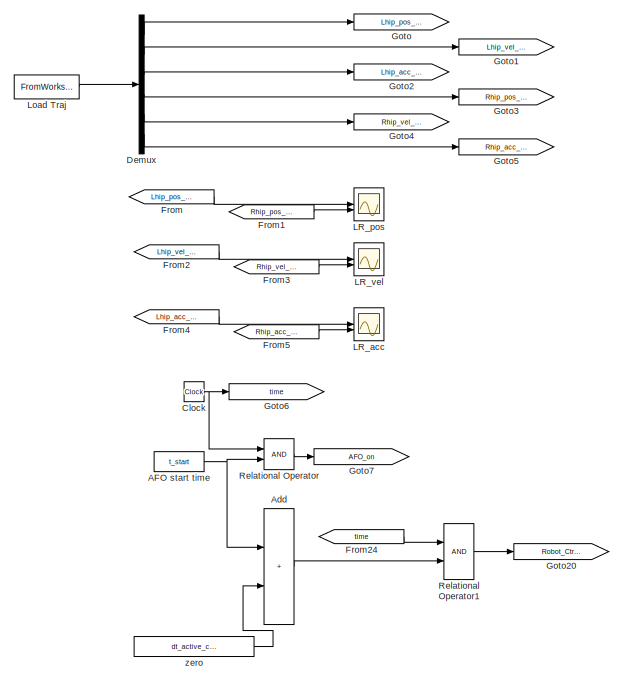
[diagram: root canvas - part 1/6, top left region]
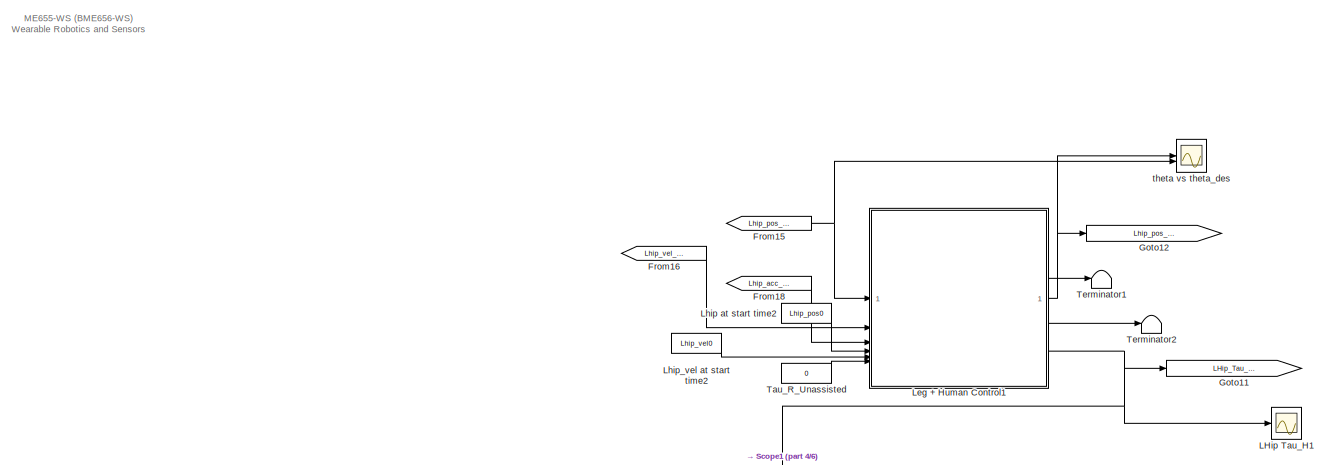
[diagram: root canvas - part 2/6, top center region]
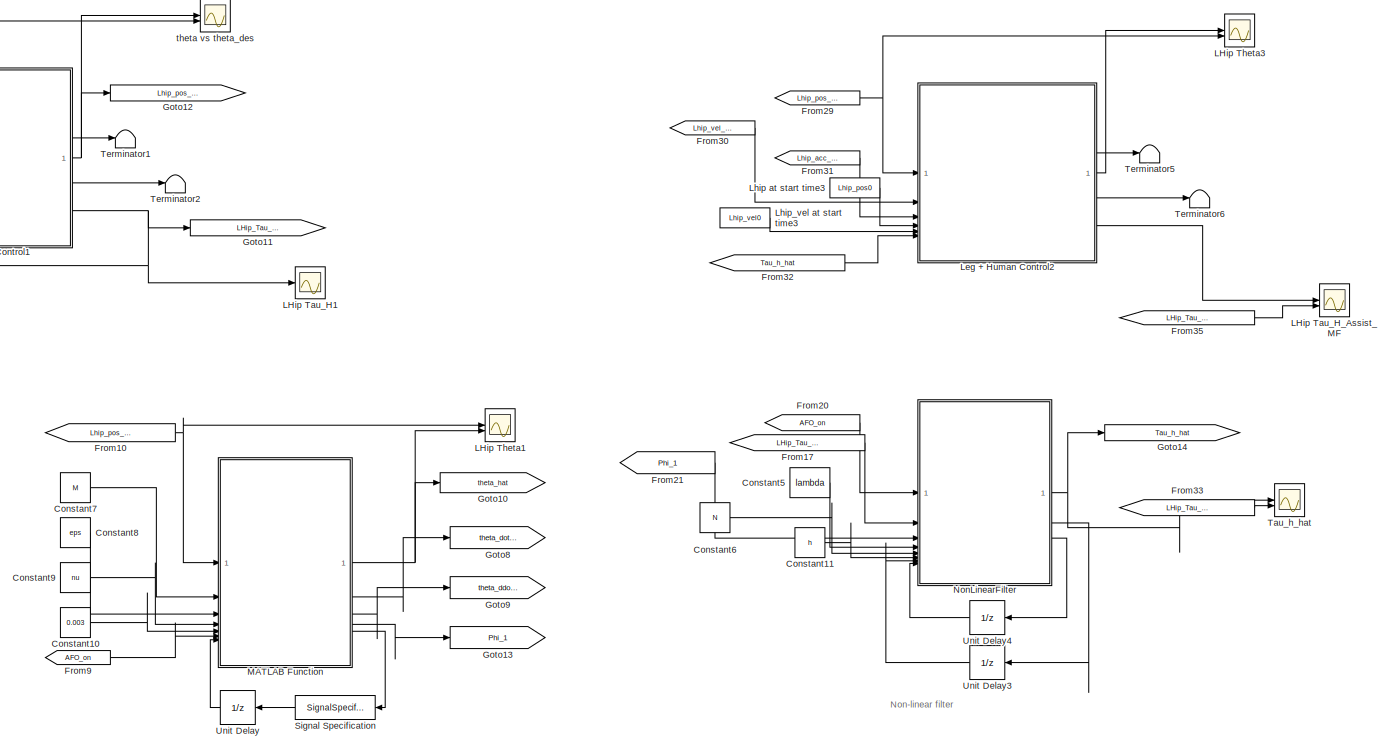
[diagram: root canvas - part 3/6, middle right region]
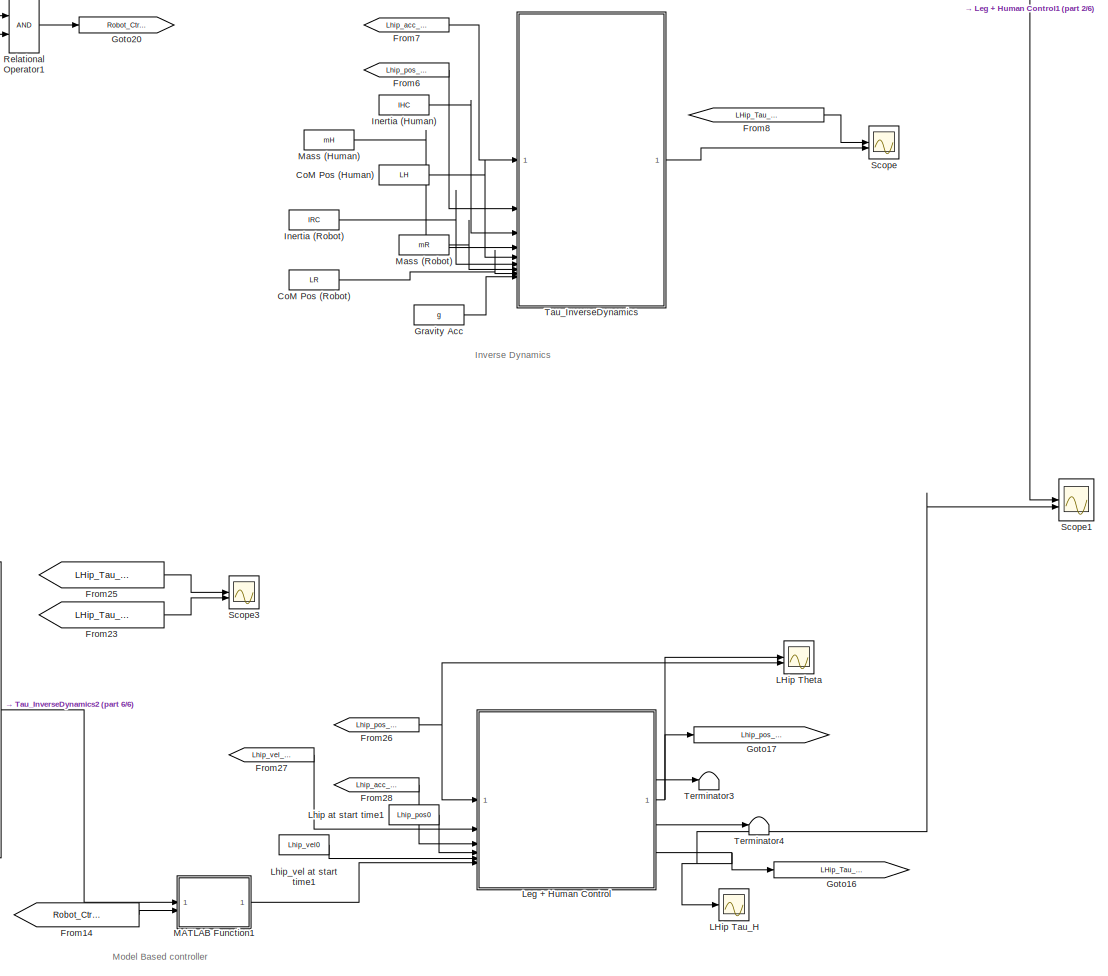
[diagram: root canvas - part 4/6, bottom center region]
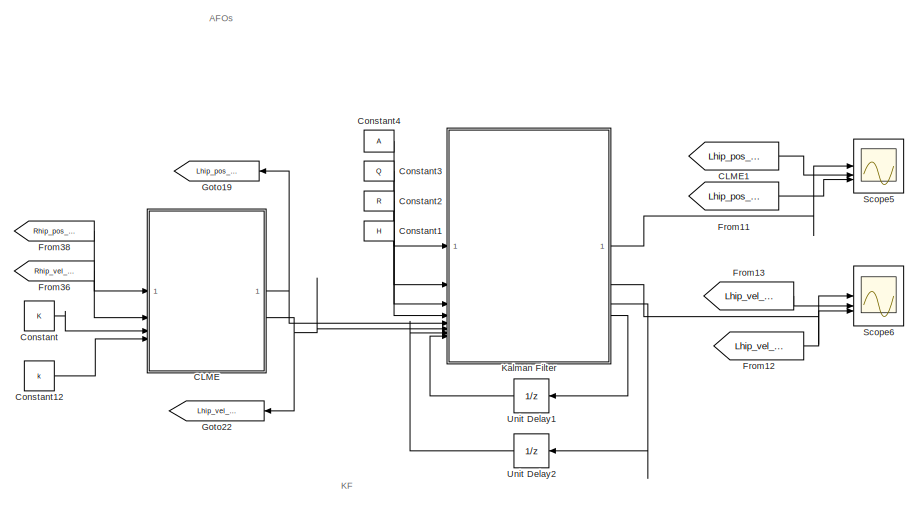
[diagram: root canvas - part 5/6, bottom right region]
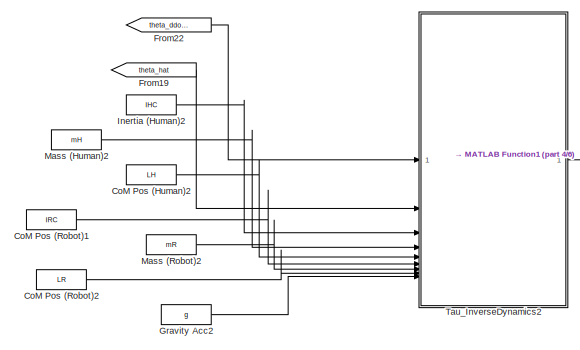
[diagram: root canvas - part 6/6, bottom left region]
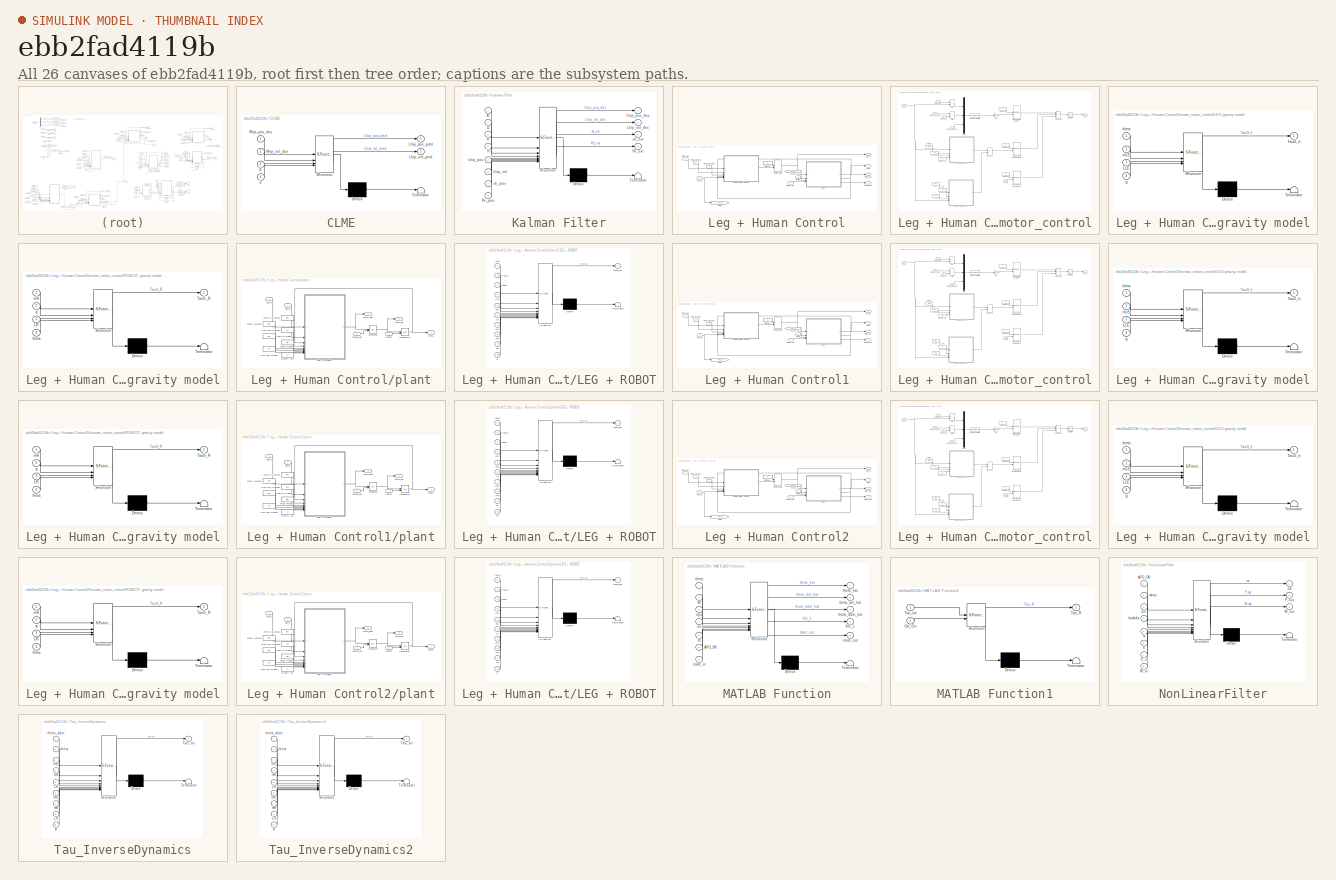
[diagram: thumbnail index - all 26 canvases of the model, root first then tree order]
MODEL slx_ebb2fad4119b
KIND model
CONFIG AbsTol = auto
CONFIG EnableMultiTasking = off
CONFIG FixedStep = .003
CONFIG MaxStep = auto
CONFIG MinStep = auto
CONFIG RelTol = 1e-3
CONFIG SampleTimeConstraint = Unconstrained
CONFIG SolverName = FixedStepAuto
CONFIG StartTime = 0.0
CONFIG StopTime = 60.0
BLOCK [Constant] AFO start time
  Value = t_start
BLOCK [Sum] Add
  IconShape = rectangular
BLOCK [SubSystem] CLME
  ErrorFcn = Stateflow.Translate.translate
  LibrarySourceBlock = simulink/User-Defined\nFunctions/MATLAB Function
  PermitHierarchicalResolution = ExplicitOnly
  SFBlockType = MATLAB Function
  TreatAsAtomicUnit = on
BLOCK [Demux] CLME/ Demux 
  Outputs = 1
BLOCK [S-Function] CLME/ SFunction 
  EnableBusSupport = on
  FunctionName = sf_sfun
  PortCounts = [4 3]
  SFcnIsStateOwnerBlock = off
  SFunctionDeploymentMode = off
  Tag = Stateflow S-Function 16
BLOCK [Terminator] CLME/ Terminator 
BLOCK [Inport] CLME/K
  Port = 3
BLOCK [Outport] CLME/Lhip_pos_pred
BLOCK [Outport] CLME/Lhip_vel_pred
  Port = 2
BLOCK [Inport] CLME/Rhip_pos_des
BLOCK [Inport] CLME/Rhip_vel_des
  Port = 2
BLOCK [Inport] CLME/k
  Port = 4
BLOCK [From] CLME1
  GotoTag = Lhip_pos_CLME
BLOCK [Clock] Clock
BLOCK [Constant] CoM Pos (Human)
  Value = LH
BLOCK [Constant] CoM Pos (Human)2
  Value = LH
BLOCK [Constant] CoM Pos (Robot)
  Value = LR
BLOCK [Constant] CoM Pos (Robot)1
  Value = IRC
BLOCK [Constant] CoM Pos (Robot)2
  Value = LR
BLOCK [Constant] Constant
  Value = K
BLOCK [Constant] Constant1
  Value = H
BLOCK [Constant] Constant10
  Value = 0.003
BLOCK [Constant] Constant11
  Value = h
BLOCK [Constant] Constant12
  Value = k
BLOCK [Constant] Constant2
  Value = R
BLOCK [Constant] Constant3
  Value = Q
BLOCK [Constant] Constant4
  Value = A
BLOCK [Constant] Constant5
  Value = lambda
BLOCK [Constant] Constant6
  Value = N
BLOCK [Constant] Constant7
  Value = M
BLOCK [Constant] Constant8
  Value = eps
BLOCK [Constant] Constant9
  Value = nu
BLOCK [Demux] Demux
  Outputs = 6
BLOCK [From] From
  GotoTag = Lhip_pos_des
BLOCK [From] From1
  GotoTag = Rhip_pos_des
BLOCK [From] From10
  GotoTag = Lhip_pos_des
BLOCK [From] From11
  GotoTag = Lhip_pos_des
BLOCK [From] From12
  GotoTag = Lhip_vel_des
BLOCK [From] From13
  GotoTag = Lhip_vel_CLME
BLOCK [From] From14
  GotoTag = Robot_Ctrl_ON
BLOCK [From] From15
  GotoTag = Lhip_pos_des
BLOCK [From] From16
  GotoTag = Lhip_vel_des
BLOCK [From] From17
  GotoTag = LHip_Tau_h_Assist_MB
BLOCK [From] From18
  GotoTag = Lhip_acc_des
BLOCK [From] From19
  GotoTag = theta_hat
BLOCK [From] From2
  GotoTag = Lhip_vel_des
BLOCK [From] From20
  GotoTag = AFO_on
BLOCK [From] From21
  GotoTag = Phi_1
BLOCK [From] From22
  GotoTag = theta_ddot_hat
BLOCK [From] From23
  GotoTag = LHip_Tau_h_Assist_MB
BLOCK [From] From24
  GotoTag = time
BLOCK [From] From25
  GotoTag = LHip_Tau_h_No_Assist
BLOCK [From] From26
  GotoTag = Lhip_pos_des
BLOCK [From] From27
  GotoTag = Lhip_vel_des
BLOCK [From] From28
  GotoTag = Lhip_acc_des
BLOCK [From] From29
  GotoTag = Lhip_pos_des
BLOCK [From] From3
  GotoTag = Rhip_vel_des
BLOCK [From] From30
  GotoTag = Lhip_vel_des
BLOCK [From] From31
  GotoTag = Lhip_acc_des
BLOCK [From] From32
  GotoTag = Tau_h_hat
BLOCK [From] From33
  GotoTag = LHip_Tau_h_Assist_MB
BLOCK [From] From35
  GotoTag = LHip_Tau_h_Assist_MB
BLOCK [From] From36
  GotoTag = Rhip_vel_des
BLOCK [From] From38
  GotoTag = Rhip_pos_des
BLOCK [From] From4
  GotoTag = Lhip_acc_des
BLOCK [From] From5
  GotoTag = Rhip_acc_des
BLOCK [From] From6
  GotoTag = Lhip_pos_des
BLOCK [From] From7
  GotoTag = Lhip_acc_des
BLOCK [From] From8
  GotoTag = LHip_Tau_h_No_Assist
BLOCK [From] From9
  GotoTag = AFO_on
BLOCK [Goto] Goto
  GotoTag = Lhip_pos_des
BLOCK [Goto] Goto1
  GotoTag = Lhip_vel_des
BLOCK [Goto] Goto10
  GotoTag = theta_hat
BLOCK [Goto] Goto11
  GotoTag = LHip_Tau_h_No_Assist
BLOCK [Goto] Goto12
  GotoTag = Lhip_pos_No_Assist
BLOCK [Goto] Goto13
  GotoTag = Phi_1
BLOCK [Goto] Goto14
  GotoTag = Tau_h_hat
BLOCK [Goto] Goto16
  GotoTag = LHip_Tau_h_Assist_MB
BLOCK [Goto] Goto17
  GotoTag = Lhip_pos_Assist_MB
BLOCK [Goto] Goto19
  GotoTag = Lhip_pos_CLME
BLOCK [Goto] Goto2
  GotoTag = Lhip_acc_des
BLOCK [Goto] Goto20
  GotoTag = Robot_Ctrl_ON
BLOCK [Goto] Goto22
  GotoTag = Lhip_vel_CLME
BLOCK [Goto] Goto3
  GotoTag = Rhip_pos_des
BLOCK [Goto] Goto4
  GotoTag = Rhip_vel_des
BLOCK [Goto] Goto5
  GotoTag = Rhip_acc_des
BLOCK [Goto] Goto6
  GotoTag = time
BLOCK [Goto] Goto7
  GotoTag = AFO_on
BLOCK [Goto] Goto8
  GotoTag = theta_dot_hat
BLOCK [Goto] Goto9
  GotoTag = theta_ddot_hat
BLOCK [Constant] Gravity Acc
  Value = g
BLOCK [Constant] Gravity Acc2
  Value = g
BLOCK [Constant] Inertia (Human)
  Value = IHC
BLOCK [Constant] Inertia (Human)2
  Value = IHC
BLOCK [Constant] Inertia (Robot)
  Value = IRC
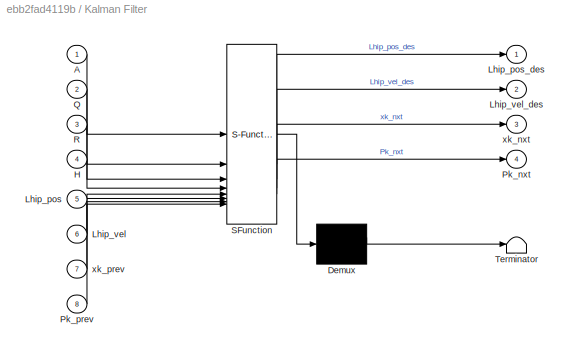
BLOCK [SubSystem] Kalman Filter
  ErrorFcn = Stateflow.Translate.translate
  LibrarySourceBlock = simulink/User-Defined\nFunctions/MATLAB Function
  PermitHierarchicalResolution = ExplicitOnly
  SFBlockType = MATLAB Function
  TreatAsAtomicUnit = on
BLOCK [Demux] Kalman Filter/ Demux 
  Outputs = 1
BLOCK [S-Function] Kalman Filter/ SFunction 
  EnableBusSupport = on
  FunctionName = sf_sfun
  PortCounts = [8 5]
  SFcnIsStateOwnerBlock = off
  SFunctionDeploymentMode = off
  Tag = Stateflow S-Function 4
BLOCK [Terminator] Kalman Filter/ Terminator 
BLOCK [Inport] Kalman Filter/A
BLOCK [Inport] Kalman Filter/H
  Port = 4
BLOCK [Inport] Kalman Filter/Lhip_pos
  Port = 5
BLOCK [Outport] Kalman Filter/Lhip_pos_des
BLOCK [Inport] Kalman Filter/Lhip_vel
  Port = 6
BLOCK [Outport] Kalman Filter/Lhip_vel_des
  Port = 2
BLOCK [Outport] Kalman Filter/Pk_nxt
  Port = 4
BLOCK [Inport] Kalman Filter/Pk_prev
  Port = 8
BLOCK [Inport] Kalman Filter/Q
  Port = 2
BLOCK [Inport] Kalman Filter/R
  Port = 3
BLOCK [Outport] Kalman Filter/xk_nxt
  Port = 3
BLOCK [Inport] Kalman Filter/xk_prev
  Port = 7
BLOCK [Scope] LHip Tau_H
  Floating = off
  NumInputPorts = 1
  ScopeSpecificationString = Simulink.scopes.TimeScopeBlockCfg('CurrentConfiguration', extmgr.ConfigurationSet(extmgr.Configuration('Core','General UI',true),extmgr.Configuration('Core','Source UI',true),extmgr.Configuration('Sources','WiredSimulink',true,'DataLoggingVariableName','ScopeData2'),extmgr.Configuration('Visuals','Time Domain',true,'SerializedDisplays',{struct('MinYLimReal','-11.00006','MaxYLimReal','19.79123','YL...<+1413ch>
BLOCK [Scope] LHip Tau_H1
  Floating = off
  NumInputPorts = 1
  ScopeSpecificationString = Simulink.scopes.TimeScopeBlockCfg('CurrentConfiguration', extmgr.ConfigurationSet(extmgr.Configuration('Core','General UI',true),extmgr.Configuration('Core','Source UI',true),extmgr.Configuration('Sources','WiredSimulink',true,'DataLoggingVariableName','ScopeData1'),extmgr.Configuration('Visuals','Time Domain',true,'SerializedDisplays',{struct('MinYLimReal','-6.94826','MaxYLimReal','21.33811','YLa...<+1412ch>
BLOCK [Scope] LHip Tau_H_Assist_MF
  Floating = off
  NumInputPorts = 2
  ScopeSpecificationString = Simulink.scopes.TimeScopeBlockCfg('CurrentConfiguration', extmgr.ConfigurationSet(extmgr.Configuration('Core','General UI',true),extmgr.Configuration('Core','Source UI',true),extmgr.Configuration('Sources','WiredSimulink',true,'DataLoggingVariableName','ScopeData2'),extmgr.Configuration('Visuals','Time Domain',true,'SerializedDisplays',{struct('MinYLimReal','-11.98629','MaxYLimReal','25.85904','YL...<+1463ch>
BLOCK [Scope] LHip Theta
  Floating = off
  NumInputPorts = 2
  ScopeSpecificationString = Simulink.scopes.TimeScopeBlockCfg('CurrentConfiguration', extmgr.ConfigurationSet(extmgr.Configuration('Core','General UI',true),extmgr.Configuration('Core','Source UI',true),extmgr.Configuration('Sources','WiredSimulink',true,'DataLoggingVariableName','ScopeData1'),extmgr.Configuration('Visuals','Time Domain',true,'SerializedDisplays',{struct('MinYLimReal','-0.18369','MaxYLimReal','0.35711','YLab...<+1488ch>
BLOCK [Scope] LHip Theta1
  Floating = off
  NumInputPorts = 2
  ScopeSpecificationString = Simulink.scopes.TimeScopeBlockCfg('CurrentConfiguration', extmgr.ConfigurationSet(extmgr.Configuration('Core','General UI',true),extmgr.Configuration('Core','Source UI',true),extmgr.Configuration('Sources','WiredSimulink',true,'DataLoggingVariableName','ScopeData1'),extmgr.Configuration('Visuals','Time Domain',true,'SerializedDisplays',{struct('MinYLimReal','-0.15527','MaxYLimReal','0.29889','YLab...<+1541ch>
BLOCK [Scope] LHip Theta3
  Floating = off
  NumInputPorts = 2
  ScopeSpecificationString = Simulink.scopes.TimeScopeBlockCfg('CurrentConfiguration', extmgr.ConfigurationSet(extmgr.Configuration('Core','General UI',true),extmgr.Configuration('Core','Source UI',true),extmgr.Configuration('Sources','WiredSimulink',true,'DataLoggingVariableName','ScopeData3'),extmgr.Configuration('Visuals','Time Domain',true,'SerializedDisplays',{struct('MinYLimReal','-0.18369','MaxYLimReal','0.35711','YLab...<+1489ch>
BLOCK [Scope] LR_acc 
  Floating = off
  NumInputPorts = 2
  ScopeSpecificationString = Simulink.scopes.TimeScopeBlockCfg('CurrentConfiguration', extmgr.ConfigurationSet(extmgr.Configuration('Core','General UI',true),extmgr.Configuration('Core','Source UI',true),extmgr.Configuration('Sources','WiredSimulink',true,'DataLoggingVariableName','ScopeData1'),extmgr.Configuration('Visuals','Time Domain',true,'SerializedDisplays',{struct('MinYLimReal','-6.53155','MaxYLimReal','8.33804','YLab...<+1374ch>
BLOCK [Scope] LR_pos
  Floating = off
  NumInputPorts = 2
  ScopeSpecificationString = Simulink.scopes.TimeScopeBlockCfg('CurrentConfiguration', extmgr.ConfigurationSet(extmgr.Configuration('Core','General UI',true),extmgr.Configuration('Core','Source UI',true),extmgr.Configuration('Sources','WiredSimulink',true),extmgr.Configuration('Visuals','Time Domain',true,'SerializedDisplays',{struct('MinYLimReal','-0.18521','MaxYLimReal','0.37085','YLabelReal','','MinYLimMag','0.00000','MaxY...<+1364ch>
BLOCK [Scope] LR_vel
  Floating = off
  NumInputPorts = 2
  ScopeSpecificationString = Simulink.scopes.TimeScopeBlockCfg('CurrentConfiguration', extmgr.ConfigurationSet(extmgr.Configuration('Core','General UI',true),extmgr.Configuration('Core','Source UI',true),extmgr.Configuration('Sources','WiredSimulink',true,'DataLoggingVariableName','ScopeData1'),extmgr.Configuration('Visuals','Time Domain',true,'SerializedDisplays',{struct('MinYLimReal','-1.19601','MaxYLimReal','1.44346','YLab...<+1403ch>
BLOCK [SubSystem] Leg + Human Control
BLOCK [From] Leg + Human Control/From3
  GotoTag = Tau_R
BLOCK [Goto] Leg + Human Control/Goto4
  GotoTag = Tau_R
BLOCK [ManualSwitch] Leg + Human Control/Human Action
  CurrentSetting = 0
BLOCK [Constant] Leg + Human Control/Null TauH
  Value = 0
BLOCK [Inport] Leg + Human Control/Tau_R
  Port = 6
BLOCK [Outport] Leg + Human Control/Tau_h
  Port = 4
  PortDimensions = [1,1]
  VarSizeSig = No
  VectorParamsAs1DForOutWhenUnconnected = off
BLOCK [SubSystem] Leg + Human Control/human_motor_control
BLOCK [Sum] Leg + Human Control/human_motor_control/Err
  IconShape = rectangular
  Inputs = +-
BLOCK [Sum] Leg + Human Control/human_motor_control/Err1
  IconShape = rectangular
  Inputs = +-
BLOCK [Sum] Leg + Human Control/human_motor_control/GravSum
  IconShape = rectangular
BLOCK [ManualSwitch] Leg + Human Control/human_motor_control/Human Gravity Comp Enabler
  CurrentSetting = 0
BLOCK [Gain] Leg + Human Control/human_motor_control/Itot
  Gain = (IRC + mR*LR^2) + (IHC + mH*LH^2)
BLOCK [SubSystem] Leg + Human Control/human_motor_control/LEG gravity model
  ErrorFcn = Stateflow.Translate.translate
  PermitHierarchicalResolution = ExplicitOnly
  SFBlockType = MATLAB Function
  TreatAsAtomicUnit = on
BLOCK [Demux] Leg + Human Control/human_motor_control/LEG gravity model/ Demux 
  Outputs = 1
BLOCK [S-Function] Leg + Human Control/human_motor_control/LEG gravity model/ SFunction 
  EnableBusSupport = on
  FunctionName = sf_sfun
  PortCounts = [4 2]
  SFcnIsStateOwnerBlock = off
  SFunctionDeploymentMode = off
  Tag = Stateflow S-Function 9
BLOCK [Terminator] Leg + Human Control/human_motor_control/LEG gravity model/ Terminator 
BLOCK [Inport] Leg + Human Control/human_motor_control/LEG gravity model/LLE
  Port = 3
BLOCK [Outport] Leg + Human Control/human_motor_control/LEG gravity model/TauG_h
  VectorParamsAs1DForOutWhenUnconnected = off
BLOCK [Inport] Leg + Human Control/human_motor_control/LEG gravity model/g
  Port = 4
BLOCK [Inport] Leg + Human Control/human_motor_control/LEG gravity model/mLE
  Port = 2
BLOCK [Inport] Leg + Human Control/human_motor_control/LEG gravity model/theta
BLOCK [Mux] Leg + Human Control/human_motor_control/Mux
  DisplayOption = bar
  Inputs = 3
BLOCK [Constant] Leg + Human Control/human_motor_control/Null TauH
  Value = 0
BLOCK [Constant] Leg + Human Control/human_motor_control/Null TauH1
  Value = 0
BLOCK [Constant] Leg + Human Control/human_motor_control/Null TauH2
  Value = 0
BLOCK [SubSystem] Leg + Human Control/human_motor_control/ROBOT gravity model
  ErrorFcn = Stateflow.Translate.translate
  PermitHierarchicalResolution = ExplicitOnly
  SFBlockType = MATLAB Function
  TreatAsAtomicUnit = on
BLOCK [Demux] Leg + Human Control/human_motor_control/ROBOT gravity model/ Demux 
  Outputs = 1
BLOCK [S-Function] Leg + Human Control/human_motor_control/ROBOT gravity model/ SFunction 
  EnableBusSupport = on
  FunctionName = sf_sfun
  PortCounts = [4 2]
  SFcnIsStateOwnerBlock = off
  SFunctionDeploymentMode = off
  Tag = Stateflow S-Function 12
BLOCK [Terminator] Leg + Human Control/human_motor_control/ROBOT gravity model/ Terminator 
BLOCK [Inport] Leg + Human Control/human_motor_control/ROBOT gravity model/LR
  Port = 3
BLOCK [Outport] Leg + Human Control/human_motor_control/ROBOT gravity model/TauG_R
  VectorParamsAs1DForOutWhenUnconnected = off
BLOCK [Inport] Leg + Human Control/human_motor_control/ROBOT gravity model/g
  Port = 2
BLOCK [Inport] Leg + Human Control/human_motor_control/ROBOT gravity model/mR
BLOCK [Inport] Leg + Human Control/human_motor_control/ROBOT gravity model/theta
  Port = 4
BLOCK [ManualSwitch] Leg + Human Control/human_motor_control/Robot Torque Feedback
  CurrentSetting = 0
BLOCK [Saturate] Leg + Human Control/human_motor_control/Saturation
  LowerLimit = -Tau_h_max
  UpperLimit = Tau_h_max
BLOCK [ManualSwitch] Leg + Human Control/human_motor_control/Servo Control Enabler
  CurrentSetting = 0
BLOCK [Sum] Leg + Human Control/human_motor_control/SumTauH
  IconShape = rectangular
  Inputs = ++-
BLOCK [Inport] Leg + Human Control/human_motor_control/TauR
  Port = 6
BLOCK [Outport] Leg + Human Control/human_motor_control/Tau_h
  PortDimensions = [1,1]
  VarSizeSig = No
  VectorParamsAs1DForOutWhenUnconnected = off
BLOCK [Constant] Leg + Human Control/human_motor_control/Tot mass
  Value = mH
BLOCK [Constant] Leg + Human Control/human_motor_control/cost
  Value = mR
BLOCK [Constant] Leg + Human Control/human_motor_control/cost1
  Value = g
BLOCK [Constant] Leg + Human Control/human_motor_control/cost2
  Value = LR
BLOCK [Constant] Leg + Human Control/human_motor_control/gravity accel
  Value = g
BLOCK [Fcn] Leg + Human Control/human_motor_control/human controller
  Expr = Kh*u(1)+Bh*u(2)+u(3)
BLOCK [Constant] Leg + Human Control/human_motor_control/pos of CoM
  Value = LH
BLOCK [Inport] Leg + Human Control/human_motor_control/theta
  Port = 4
BLOCK [Inport] Leg + Human Control/human_motor_control/theta_ddot_des
  Port = 3
BLOCK [Inport] Leg + Human Control/human_motor_control/theta_des
BLOCK [Inport] Leg + Human Control/human_motor_control/theta_dot
  Port = 5
BLOCK [Inport] Leg + Human Control/human_motor_control/theta_dot_des
  Port = 2
BLOCK [SubSystem] Leg + Human Control/plant
BLOCK [Constant] Leg + Human Control/plant/CoM Pos (Human)
  Value = LH
BLOCK [Constant] Leg + Human Control/plant/CoM Pos (Robot)
  Value = LR
BLOCK [Constant] Leg + Human Control/plant/Gravity Acc
  Value = g
BLOCK [Constant] Leg + Human Control/plant/Inertia (Human)
  Value = IHC
BLOCK [Constant] Leg + Human Control/plant/Inertia (Robot)
  Value = IRC
BLOCK [Integrator] Leg + Human Control/plant/Integrator
  InitialCondition = theta_d0
  InitialConditionSource = external
BLOCK [Integrator] Leg + Human Control/plant/Integrator1
  InitialCondition = theta_0
  InitialConditionSource = external
BLOCK [SubSystem] Leg + Human Control/plant/LEG + ROBOT
  ErrorFcn = Stateflow.Translate.translate
  PermitHierarchicalResolution = ExplicitOnly
  SFBlockType = MATLAB Function
  TreatAsAtomicUnit = on
BLOCK [Demux] Leg + Human Control/plant/LEG + ROBOT/ Demux 
  Outputs = 1
BLOCK [S-Function] Leg + Human Control/plant/LEG + ROBOT/ SFunction 
  EnableBusSupport = on
  FunctionName = sf_sfun
  PortCounts = [10 2]
  SFcnIsStateOwnerBlock = off
  SFunctionDeploymentMode = off
  Tag = Stateflow S-Function 14
BLOCK [Terminator] Leg + Human Control/plant/LEG + ROBOT/ Terminator 
BLOCK [Inport] Leg + Human Control/plant/LEG + ROBOT/IHC
  Port = 4
BLOCK [Inport] Leg + Human Control/plant/LEG + ROBOT/IRC
  Port = 7
BLOCK [Inport] Leg + Human Control/plant/LEG + ROBOT/LH
  Port = 6
BLOCK [Inport] Leg + Human Control/plant/LEG + ROBOT/LR
  Port = 9
BLOCK [Inport] Leg + Human Control/plant/LEG + ROBOT/Tau_R
  Port = 2
BLOCK [Inport] Leg + Human Control/plant/LEG + ROBOT/Tau_h
BLOCK [Inport] Leg + Human Control/plant/LEG + ROBOT/g
  Port = 10
BLOCK [Inport] Leg + Human Control/plant/LEG + ROBOT/mH
  Port = 5
BLOCK [Inport] Leg + Human Control/plant/LEG + ROBOT/mR
  Port = 8
BLOCK [Inport] Leg + Human Control/plant/LEG + ROBOT/theta
  Port = 3
BLOCK [Outport] Leg + Human Control/plant/LEG + ROBOT/theta_dd
  VectorParamsAs1DForOutWhenUnconnected = off
BLOCK [Constant] Leg + Human Control/plant/Mass (Human)
  Value = mH
BLOCK [Constant] Leg + Human Control/plant/Mass (Robot)
  Value = mR
BLOCK [Inport] Leg + Human Control/plant/Tau_R
  Port = 2
BLOCK [Inport] Leg + Human Control/plant/Tau_h
BLOCK [Outport] Leg + Human Control/plant/theta
  PortDimensions = [1,1]
  VarSizeSig = No
  VectorParamsAs1DForOutWhenUnconnected = off
BLOCK [Inport] Leg + Human Control/plant/theta0
  Port = 3
BLOCK [Inport] Leg + Human Control/plant/theta0_dot
  Port = 4
BLOCK [Outport] Leg + Human Control/plant/theta_ddot
  Port = 3
  PortDimensions = [1,1]
  VarSizeSig = No
  VectorParamsAs1DForOutWhenUnconnected = off
BLOCK [Outport] Leg + Human Control/plant/theta_dot
  Port = 2
  PortDimensions = [1,1]
  VarSizeSig = No
  VectorParamsAs1DForOutWhenUnconnected = off
BLOCK [Outport] Leg + Human Control/theta
  PortDimensions = [1,1]
  VarSizeSig = No
  VectorParamsAs1DForOutWhenUnconnected = off
BLOCK [Inport] Leg + Human Control/theta0
  Port = 4
BLOCK [Inport] Leg + Human Control/theta0_dot
  Port = 5
BLOCK [Outport] Leg + Human Control/theta_ddot
  Port = 3
  PortDimensions = [1,1]
  VarSizeSig = No
  VectorParamsAs1DForOutWhenUnconnected = off
BLOCK [Inport] Leg + Human Control/theta_ddot_des
  Port = 3
BLOCK [Inport] Leg + Human Control/theta_des
BLOCK [Outport] Leg + Human Control/theta_dot
  Port = 2
  PortDimensions = [1,1]
  VarSizeSig = No
  VectorParamsAs1DForOutWhenUnconnected = off
BLOCK [Inport] Leg + Human Control/theta_dot_des
  Port = 2
BLOCK [SubSystem] Leg + Human Control1
BLOCK [From] Leg + Human Control1/From3
  GotoTag = Tau_R
BLOCK [Goto] Leg + Human Control1/Goto4
  GotoTag = Tau_R
BLOCK [ManualSwitch] Leg + Human Control1/Human Action
  CurrentSetting = 0
BLOCK [Constant] Leg + Human Control1/Null TauH
  Value = 0
BLOCK [Inport] Leg + Human Control1/Tau_R
  Port = 6
BLOCK [Outport] Leg + Human Control1/Tau_h
  Port = 4
  PortDimensions = [1,1]
  VarSizeSig = No
  VectorParamsAs1DForOutWhenUnconnected = off
BLOCK [SubSystem] Leg + Human Control1/human_motor_control
BLOCK [Sum] Leg + Human Control1/human_motor_control/Err
  IconShape = rectangular
  Inputs = +-
BLOCK [Sum] Leg + Human Control1/human_motor_control/Err1
  IconShape = rectangular
  Inputs = +-
BLOCK [Sum] Leg + Human Control1/human_motor_control/GravSum
  IconShape = rectangular
BLOCK [ManualSwitch] Leg + Human Control1/human_motor_control/Human Gravity Comp Enabler
  CurrentSetting = 0
BLOCK [Gain] Leg + Human Control1/human_motor_control/Itot
  Gain = (IRC + mR*LR^2) + (IHC + mH*LH^2)
BLOCK [SubSystem] Leg + Human Control1/human_motor_control/LEG gravity model
  ErrorFcn = Stateflow.Translate.translate
  PermitHierarchicalResolution = ExplicitOnly
  SFBlockType = MATLAB Function
  TreatAsAtomicUnit = on
BLOCK [Demux] Leg + Human Control1/human_motor_control/LEG gravity model/ Demux 
  Outputs = 1
BLOCK [S-Function] Leg + Human Control1/human_motor_control/LEG gravity model/ SFunction 
  EnableBusSupport = on
  FunctionName = sf_sfun
  PortCounts = [4 2]
  SFcnIsStateOwnerBlock = off
  SFunctionDeploymentMode = off
  Tag = Stateflow S-Function 5
BLOCK [Terminator] Leg + Human Control1/human_motor_control/LEG gravity model/ Terminator 
BLOCK [Inport] Leg + Human Control1/human_motor_control/LEG gravity model/LLE
  Port = 3
BLOCK [Outport] Leg + Human Control1/human_motor_control/LEG gravity model/TauG_h
  VectorParamsAs1DForOutWhenUnconnected = off
BLOCK [Inport] Leg + Human Control1/human_motor_control/LEG gravity model/g
  Port = 4
BLOCK [Inport] Leg + Human Control1/human_motor_control/LEG gravity model/mLE
  Port = 2
BLOCK [Inport] Leg + Human Control1/human_motor_control/LEG gravity model/theta
BLOCK [Mux] Leg + Human Control1/human_motor_control/Mux
  DisplayOption = bar
  Inputs = 3
BLOCK [Constant] Leg + Human Control1/human_motor_control/Null TauH
  Value = 0
BLOCK [Constant] Leg + Human Control1/human_motor_control/Null TauH1
  Value = 0
BLOCK [Constant] Leg + Human Control1/human_motor_control/Null TauH2
  Value = 0
BLOCK [SubSystem] Leg + Human Control1/human_motor_control/ROBOT gravity model
  ErrorFcn = Stateflow.Translate.translate
  PermitHierarchicalResolution = ExplicitOnly
  SFBlockType = MATLAB Function
  TreatAsAtomicUnit = on
BLOCK [Demux] Leg + Human Control1/human_motor_control/ROBOT gravity model/ Demux 
  Outputs = 1
BLOCK [S-Function] Leg + Human Control1/human_motor_control/ROBOT gravity model/ SFunction 
  EnableBusSupport = on
  FunctionName = sf_sfun
  PortCounts = [4 2]
  SFcnIsStateOwnerBlock = off
  SFunctionDeploymentMode = off
  Tag = Stateflow S-Function 6
BLOCK [Terminator] Leg + Human Control1/human_motor_control/ROBOT gravity model/ Terminator 
BLOCK [Inport] Leg + Human Control1/human_motor_control/ROBOT gravity model/LR
  Port = 3
BLOCK [Outport] Leg + Human Control1/human_motor_control/ROBOT gravity model/TauG_R
  VectorParamsAs1DForOutWhenUnconnected = off
BLOCK [Inport] Leg + Human Control1/human_motor_control/ROBOT gravity model/g
  Port = 2
BLOCK [Inport] Leg + Human Control1/human_motor_control/ROBOT gravity model/mR
BLOCK [Inport] Leg + Human Control1/human_motor_control/ROBOT gravity model/theta
  Port = 4
BLOCK [ManualSwitch] Leg + Human Control1/human_motor_control/Robot Torque Feedback
  CurrentSetting = 0
BLOCK [Saturate] Leg + Human Control1/human_motor_control/Saturation
  LowerLimit = -Tau_h_max
  UpperLimit = Tau_h_max
BLOCK [ManualSwitch] Leg + Human Control1/human_motor_control/Servo Control Enabler
  CurrentSetting = 0
BLOCK [Sum] Leg + Human Control1/human_motor_control/SumTauH
  IconShape = rectangular
  Inputs = ++-
BLOCK [Inport] Leg + Human Control1/human_motor_control/TauR
  Port = 6
BLOCK [Outport] Leg + Human Control1/human_motor_control/Tau_h
  PortDimensions = [1,1]
  VarSizeSig = No
  VectorParamsAs1DForOutWhenUnconnected = off
BLOCK [Constant] Leg + Human Control1/human_motor_control/Tot mass
  Value = mH
BLOCK [Constant] Leg + Human Control1/human_motor_control/cost
  Value = mR
BLOCK [Constant] Leg + Human Control1/human_motor_control/cost1
  Value = g
BLOCK [Constant] Leg + Human Control1/human_motor_control/cost2
  Value = LR
BLOCK [Constant] Leg + Human Control1/human_motor_control/gravity accel
  Value = g
BLOCK [Fcn] Leg + Human Control1/human_motor_control/human controller
  Expr = Kh*u(1)+Bh*u(2)+u(3)
BLOCK [Constant] Leg + Human Control1/human_motor_control/pos of CoM
  Value = LH
BLOCK [Inport] Leg + Human Control1/human_motor_control/theta
  Port = 4
BLOCK [Inport] Leg + Human Control1/human_motor_control/theta_ddot_des
  Port = 3
BLOCK [Inport] Leg + Human Control1/human_motor_control/theta_des
BLOCK [Inport] Leg + Human Control1/human_motor_control/theta_dot
  Port = 5
BLOCK [Inport] Leg + Human Control1/human_motor_control/theta_dot_des
  Port = 2
BLOCK [SubSystem] Leg + Human Control1/plant
BLOCK [Constant] Leg + Human Control1/plant/CoM Pos (Human)
  Value = LH
BLOCK [Constant] Leg + Human Control1/plant/CoM Pos (Robot)
  Value = LR
BLOCK [Constant] Leg + Human Control1/plant/Gravity Acc
  Value = g
BLOCK [Constant] Leg + Human Control1/plant/Inertia (Human)
  Value = IHC
BLOCK [Constant] Leg + Human Control1/plant/Inertia (Robot)
  Value = IRC
BLOCK [Integrator] Leg + Human Control1/plant/Integrator
  InitialCondition = theta_d0
  InitialConditionSource = external
BLOCK [Integrator] Leg + Human Control1/plant/Integrator1
  InitialCondition = theta_0
  InitialConditionSource = external
BLOCK [SubSystem] Leg + Human Control1/plant/LEG + ROBOT
  ErrorFcn = Stateflow.Translate.translate
  PermitHierarchicalResolution = ExplicitOnly
  SFBlockType = MATLAB Function
  TreatAsAtomicUnit = on
BLOCK [Demux] Leg + Human Control1/plant/LEG + ROBOT/ Demux 
  Outputs = 1
BLOCK [S-Function] Leg + Human Control1/plant/LEG + ROBOT/ SFunction 
  EnableBusSupport = on
  FunctionName = sf_sfun
  PortCounts = [10 2]
  SFcnIsStateOwnerBlock = off
  SFunctionDeploymentMode = off
  Tag = Stateflow S-Function 13
BLOCK [Terminator] Leg + Human Control1/plant/LEG + ROBOT/ Terminator 
BLOCK [Inport] Leg + Human Control1/plant/LEG + ROBOT/IHC
  Port = 4
BLOCK [Inport] Leg + Human Control1/plant/LEG + ROBOT/IRC
  Port = 7
BLOCK [Inport] Leg + Human Control1/plant/LEG + ROBOT/LH
  Port = 6
BLOCK [Inport] Leg + Human Control1/plant/LEG + ROBOT/LR
  Port = 9
BLOCK [Inport] Leg + Human Control1/plant/LEG + ROBOT/Tau_R
  Port = 2
BLOCK [Inport] Leg + Human Control1/plant/LEG + ROBOT/Tau_h
BLOCK [Inport] Leg + Human Control1/plant/LEG + ROBOT/g
  Port = 10
BLOCK [Inport] Leg + Human Control1/plant/LEG + ROBOT/mH
  Port = 5
BLOCK [Inport] Leg + Human Control1/plant/LEG + ROBOT/mR
  Port = 8
BLOCK [Inport] Leg + Human Control1/plant/LEG + ROBOT/theta
  Port = 3
BLOCK [Outport] Leg + Human Control1/plant/LEG + ROBOT/theta_dd
  VectorParamsAs1DForOutWhenUnconnected = off
BLOCK [Constant] Leg + Human Control1/plant/Mass (Human)
  Value = mH
BLOCK [Constant] Leg + Human Control1/plant/Mass (Robot)
  Value = mR
BLOCK [Inport] Leg + Human Control1/plant/Tau_R
  Port = 2
BLOCK [Inport] Leg + Human Control1/plant/Tau_h
BLOCK [Outport] Leg + Human Control1/plant/theta
  PortDimensions = [1,1]
  VarSizeSig = No
  VectorParamsAs1DForOutWhenUnconnected = off
BLOCK [Inport] Leg + Human Control1/plant/theta0
  Port = 3
BLOCK [Inport] Leg + Human Control1/plant/theta0_dot
  Port = 4
BLOCK [Outport] Leg + Human Control1/plant/theta_ddot
  Port = 3
  PortDimensions = [1,1]
  VarSizeSig = No
  VectorParamsAs1DForOutWhenUnconnected = off
BLOCK [Outport] Leg + Human Control1/plant/theta_dot
  Port = 2
  PortDimensions = [1,1]
  VarSizeSig = No
  VectorParamsAs1DForOutWhenUnconnected = off
BLOCK [Outport] Leg + Human Control1/theta
  PortDimensions = [1,1]
  VarSizeSig = No
  VectorParamsAs1DForOutWhenUnconnected = off
BLOCK [Inport] Leg + Human Control1/theta0
  Port = 4
BLOCK [Inport] Leg + Human Control1/theta0_dot
  Port = 5
BLOCK [Outport] Leg + Human Control1/theta_ddot
  Port = 3
  PortDimensions = [1,1]
  VarSizeSig = No
  VectorParamsAs1DForOutWhenUnconnected = off
BLOCK [Inport] Leg + Human Control1/theta_ddot_des
  Port = 3
BLOCK [Inport] Leg + Human Control1/theta_des
BLOCK [Outport] Leg + Human Control1/theta_dot
  Port = 2
  PortDimensions = [1,1]
  VarSizeSig = No
  VectorParamsAs1DForOutWhenUnconnected = off
BLOCK [Inport] Leg + Human Control1/theta_dot_des
  Port = 2
BLOCK [SubSystem] Leg + Human Control2
BLOCK [From] Leg + Human Control2/From3
  GotoTag = Tau_R
BLOCK [Goto] Leg + Human Control2/Goto4
  GotoTag = Tau_R
BLOCK [ManualSwitch] Leg + Human Control2/Human Action
  CurrentSetting = 0
BLOCK [Constant] Leg + Human Control2/Null TauH
  Value = 0
BLOCK [Inport] Leg + Human Control2/Tau_R
  Port = 6
BLOCK [Outport] Leg + Human Control2/Tau_h
  Port = 4
  PortDimensions = [1,1]
  VarSizeSig = No
  VectorParamsAs1DForOutWhenUnconnected = off
BLOCK [SubSystem] Leg + Human Control2/human_motor_control
BLOCK [Sum] Leg + Human Control2/human_motor_control/Err
  IconShape = rectangular
  Inputs = +-
BLOCK [Sum] Leg + Human Control2/human_motor_control/Err1
  IconShape = rectangular
  Inputs = +-
BLOCK [Sum] Leg + Human Control2/human_motor_control/GravSum
  IconShape = rectangular
BLOCK [ManualSwitch] Leg + Human Control2/human_motor_control/Human Gravity Comp Enabler
  CurrentSetting = 0
BLOCK [Gain] Leg + Human Control2/human_motor_control/Itot
  Gain = (IRC + mR*LR^2) + (IHC + mH*LH^2)
BLOCK [SubSystem] Leg + Human Control2/human_motor_control/LEG gravity model
  ErrorFcn = Stateflow.Translate.translate
  PermitHierarchicalResolution = ExplicitOnly
  SFBlockType = MATLAB Function
  TreatAsAtomicUnit = on
BLOCK [Demux] Leg + Human Control2/human_motor_control/LEG gravity model/ Demux 
  Outputs = 1
BLOCK [S-Function] Leg + Human Control2/human_motor_control/LEG gravity model/ SFunction 
  EnableBusSupport = on
  FunctionName = sf_sfun
  PortCounts = [4 2]
  SFcnIsStateOwnerBlock = off
  SFunctionDeploymentMode = off
  Tag = Stateflow S-Function 8
BLOCK [Terminator] Leg + Human Control2/human_motor_control/LEG gravity model/ Terminator 
BLOCK [Inport] Leg + Human Control2/human_motor_control/LEG gravity model/LLE
  Port = 3
BLOCK [Outport] Leg + Human Control2/human_motor_control/LEG gravity model/TauG_h
  VectorParamsAs1DForOutWhenUnconnected = off
BLOCK [Inport] Leg + Human Control2/human_motor_control/LEG gravity model/g
  Port = 4
BLOCK [Inport] Leg + Human Control2/human_motor_control/LEG gravity model/mLE
  Port = 2
BLOCK [Inport] Leg + Human Control2/human_motor_control/LEG gravity model/theta
BLOCK [Mux] Leg + Human Control2/human_motor_control/Mux
  DisplayOption = bar
  Inputs = 3
BLOCK [Constant] Leg + Human Control2/human_motor_control/Null TauH
  Value = 0
BLOCK [Constant] Leg + Human Control2/human_motor_control/Null TauH1
  Value = 0
BLOCK [Constant] Leg + Human Control2/human_motor_control/Null TauH2
  Value = 0
BLOCK [SubSystem] Leg + Human Control2/human_motor_control/ROBOT gravity model
  ErrorFcn = Stateflow.Translate.translate
  PermitHierarchicalResolution = ExplicitOnly
  SFBlockType = MATLAB Function
  TreatAsAtomicUnit = on
BLOCK [Demux] Leg + Human Control2/human_motor_control/ROBOT gravity model/ Demux 
  Outputs = 1
BLOCK [S-Function] Leg + Human Control2/human_motor_control/ROBOT gravity model/ SFunction 
  EnableBusSupport = on
  FunctionName = sf_sfun
  PortCounts = [4 2]
  SFcnIsStateOwnerBlock = off
  SFunctionDeploymentMode = off
  Tag = Stateflow S-Function 10
BLOCK [Terminator] Leg + Human Control2/human_motor_control/ROBOT gravity model/ Terminator 
BLOCK [Inport] Leg + Human Control2/human_motor_control/ROBOT gravity model/LR
  Port = 3
BLOCK [Outport] Leg + Human Control2/human_motor_control/ROBOT gravity model/TauG_R
  VectorParamsAs1DForOutWhenUnconnected = off
BLOCK [Inport] Leg + Human Control2/human_motor_control/ROBOT gravity model/g
  Port = 2
BLOCK [Inport] Leg + Human Control2/human_motor_control/ROBOT gravity model/mR
BLOCK [Inport] Leg + Human Control2/human_motor_control/ROBOT gravity model/theta
  Port = 4
BLOCK [ManualSwitch] Leg + Human Control2/human_motor_control/Robot Torque Feedback
  CurrentSetting = 0
BLOCK [Saturate] Leg + Human Control2/human_motor_control/Saturation
  LowerLimit = -Tau_h_max
  UpperLimit = Tau_h_max
BLOCK [ManualSwitch] Leg + Human Control2/human_motor_control/Servo Control Enabler
  CurrentSetting = 0
BLOCK [Sum] Leg + Human Control2/human_motor_control/SumTauH
  IconShape = rectangular
  Inputs = ++-
BLOCK [Inport] Leg + Human Control2/human_motor_control/TauR
  Port = 6
BLOCK [Outport] Leg + Human Control2/human_motor_control/Tau_h
  PortDimensions = [1,1]
  VarSizeSig = No
  VectorParamsAs1DForOutWhenUnconnected = off
BLOCK [Constant] Leg + Human Control2/human_motor_control/Tot mass
  Value = mH
BLOCK [Constant] Leg + Human Control2/human_motor_control/cost
  Value = mR
BLOCK [Constant] Leg + Human Control2/human_motor_control/cost1
  Value = g
BLOCK [Constant] Leg + Human Control2/human_motor_control/cost2
  Value = LR
BLOCK [Constant] Leg + Human Control2/human_motor_control/gravity accel
  Value = g
BLOCK [Fcn] Leg + Human Control2/human_motor_control/human controller
  Expr = Kh*u(1)+Bh*u(2)+u(3)
BLOCK [Constant] Leg + Human Control2/human_motor_control/pos of CoM
  Value = LH
BLOCK [Inport] Leg + Human Control2/human_motor_control/theta
  Port = 4
BLOCK [Inport] Leg + Human Control2/human_motor_control/theta_ddot_des
  Port = 3
BLOCK [Inport] Leg + Human Control2/human_motor_control/theta_des
BLOCK [Inport] Leg + Human Control2/human_motor_control/theta_dot
  Port = 5
BLOCK [Inport] Leg + Human Control2/human_motor_control/theta_dot_des
  Port = 2
BLOCK [SubSystem] Leg + Human Control2/plant
BLOCK [Constant] Leg + Human Control2/plant/CoM Pos (Human)
  Value = LH
BLOCK [Constant] Leg + Human Control2/plant/CoM Pos (Robot)
  Value = LR
BLOCK [Constant] Leg + Human Control2/plant/Gravity Acc
  Value = g
BLOCK [Constant] Leg + Human Control2/plant/Inertia (Human)
  Value = IHC
BLOCK [Constant] Leg + Human Control2/plant/Inertia (Robot)
  Value = IRC
BLOCK [Integrator] Leg + Human Control2/plant/Integrator
  InitialCondition = theta_d0
  InitialConditionSource = external
BLOCK [Integrator] Leg + Human Control2/plant/Integrator1
  InitialCondition = theta_0
  InitialConditionSource = external
BLOCK [SubSystem] Leg + Human Control2/plant/LEG + ROBOT
  ErrorFcn = Stateflow.Translate.translate
  PermitHierarchicalResolution = ExplicitOnly
  SFBlockType = MATLAB Function
  TreatAsAtomicUnit = on
BLOCK [Demux] Leg + Human Control2/plant/LEG + ROBOT/ Demux 
  Outputs = 1
BLOCK [S-Function] Leg + Human Control2/plant/LEG + ROBOT/ SFunction 
  EnableBusSupport = on
  FunctionName = sf_sfun
  PortCounts = [10 2]
  SFcnIsStateOwnerBlock = off
  SFunctionDeploymentMode = off
  Tag = Stateflow S-Function 15
BLOCK [Terminator] Leg + Human Control2/plant/LEG + ROBOT/ Terminator 
BLOCK [Inport] Leg + Human Control2/plant/LEG + ROBOT/IHC
  Port = 4
BLOCK [Inport] Leg + Human Control2/plant/LEG + ROBOT/IRC
  Port = 7
BLOCK [Inport] Leg + Human Control2/plant/LEG + ROBOT/LH
  Port = 6
BLOCK [Inport] Leg + Human Control2/plant/LEG + ROBOT/LR
  Port = 9
BLOCK [Inport] Leg + Human Control2/plant/LEG + ROBOT/Tau_R
  Port = 2
BLOCK [Inport] Leg + Human Control2/plant/LEG + ROBOT/Tau_h
BLOCK [Inport] Leg + Human Control2/plant/LEG + ROBOT/g
  Port = 10
BLOCK [Inport] Leg + Human Control2/plant/LEG + ROBOT/mH
  Port = 5
BLOCK [Inport] Leg + Human Control2/plant/LEG + ROBOT/mR
  Port = 8
BLOCK [Inport] Leg + Human Control2/plant/LEG + ROBOT/theta
  Port = 3
BLOCK [Outport] Leg + Human Control2/plant/LEG + ROBOT/theta_dd
  VectorParamsAs1DForOutWhenUnconnected = off
BLOCK [Constant] Leg + Human Control2/plant/Mass (Human)
  Value = mH
BLOCK [Constant] Leg + Human Control2/plant/Mass (Robot)
  Value = mR
BLOCK [Inport] Leg + Human Control2/plant/Tau_R
  Port = 2
BLOCK [Inport] Leg + Human Control2/plant/Tau_h
BLOCK [Outport] Leg + Human Control2/plant/theta
  PortDimensions = [1,1]
  VarSizeSig = No
  VectorParamsAs1DForOutWhenUnconnected = off
BLOCK [Inport] Leg + Human Control2/plant/theta0
  Port = 3
BLOCK [Inport] Leg + Human Control2/plant/theta0_dot
  Port = 4
BLOCK [Outport] Leg + Human Control2/plant/theta_ddot
  Port = 3
  PortDimensions = [1,1]
  VarSizeSig = No
  VectorParamsAs1DForOutWhenUnconnected = off
BLOCK [Outport] Leg + Human Control2/plant/theta_dot
  Port = 2
  PortDimensions = [1,1]
  VarSizeSig = No
  VectorParamsAs1DForOutWhenUnconnected = off
BLOCK [Outport] Leg + Human Control2/theta
  PortDimensions = [1,1]
  VarSizeSig = No
  VectorParamsAs1DForOutWhenUnconnected = off
BLOCK [Inport] Leg + Human Control2/theta0
  Port = 4
BLOCK [Inport] Leg + Human Control2/theta0_dot
  Port = 5
BLOCK [Outport] Leg + Human Control2/theta_ddot
  Port = 3
  PortDimensions = [1,1]
  VarSizeSig = No
  VectorParamsAs1DForOutWhenUnconnected = off
BLOCK [Inport] Leg + Human Control2/theta_ddot_des
  Port = 3
BLOCK [Inport] Leg + Human Control2/theta_des
BLOCK [Outport] Leg + Human Control2/theta_dot
  Port = 2
  PortDimensions = [1,1]
  VarSizeSig = No
  VectorParamsAs1DForOutWhenUnconnected = off
BLOCK [Inport] Leg + Human Control2/theta_dot_des
  Port = 2
BLOCK [Constant] Lhip at start time1
  Value = Lhip_pos0
BLOCK [Constant] Lhip at start time2
  Value = Lhip_pos0
BLOCK [Constant] Lhip at start time3
  Value = Lhip_pos0
BLOCK [Constant] Lhip_vel at start time1
  Value = Lhip_vel0
BLOCK [Constant] Lhip_vel at start time2
  Value = Lhip_vel0
BLOCK [Constant] Lhip_vel at start time3
  Value = Lhip_vel0
BLOCK [FromWorkspace] Load Traj
  VariableName = LH_hip_traj
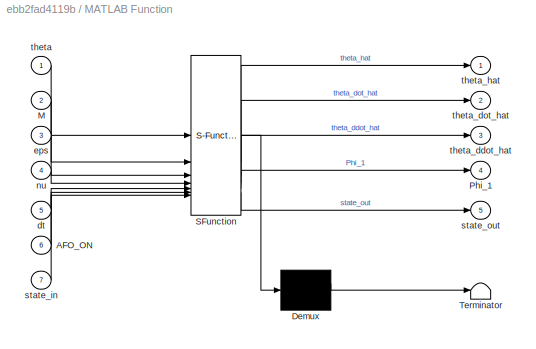
BLOCK [SubSystem] MATLAB Function
  ErrorFcn = Stateflow.Translate.translate
  PermitHierarchicalResolution = ExplicitOnly
  SFBlockType = MATLAB Function
  TreatAsAtomicUnit = on
BLOCK [Demux] MATLAB Function/ Demux 
  Outputs = 1
BLOCK [S-Function] MATLAB Function/ SFunction 
  EnableBusSupport = on
  FunctionName = sf_sfun
  PortCounts = [7 6]
  SFcnIsStateOwnerBlock = off
  SFunctionDeploymentMode = off
  Tag = Stateflow S-Function 1
BLOCK [Terminator] MATLAB Function/ Terminator 
BLOCK [Inport] MATLAB Function/AFO_ON
  Port = 6
BLOCK [Inport] MATLAB Function/M
  Port = 2
BLOCK [Outport] MATLAB Function/Phi_1
  Port = 4
BLOCK [Inport] MATLAB Function/dt
  Port = 5
BLOCK [Inport] MATLAB Function/eps
  Port = 3
BLOCK [Inport] MATLAB Function/nu
  Port = 4
BLOCK [Inport] MATLAB Function/state_in
  Port = 7
BLOCK [Outport] MATLAB Function/state_out
  Port = 5
BLOCK [Inport] MATLAB Function/theta
BLOCK [Outport] MATLAB Function/theta_ddot_hat
  Port = 3
BLOCK [Outport] MATLAB Function/theta_dot_hat
  Port = 2
BLOCK [Outport] MATLAB Function/theta_hat
BLOCK [SubSystem] MATLAB Function1
  ErrorFcn = Stateflow.Translate.translate
  LibrarySourceBlock = simulink/User-Defined\nFunctions/MATLAB Function
  PermitHierarchicalResolution = ExplicitOnly
  SFBlockType = MATLAB Function
  TreatAsAtomicUnit = on
BLOCK [Demux] MATLAB Function1/ Demux 
  Outputs = 1
BLOCK [S-Function] MATLAB Function1/ SFunction 
  EnableBusSupport = on
  FunctionName = sf_sfun
  PortCounts = [2 2]
  SFcnIsStateOwnerBlock = off
  SFunctionDeploymentMode = off
  Tag = Stateflow S-Function 3
BLOCK [Terminator] MATLAB Function1/ Terminator 
BLOCK [Inport] MATLAB Function1/Ctrl_On
  Port = 2
BLOCK [Outport] MATLAB Function1/Tau_R
BLOCK [Inport] MATLAB Function1/Tau_tot
BLOCK [Constant] Mass (Human)
  Value = mH
BLOCK [Constant] Mass (Human)2
  Value = mH
BLOCK [Constant] Mass (Robot)
  Value = mR
BLOCK [Constant] Mass (Robot)2
  Value = mR
BLOCK [SubSystem] NonLinearFilter
  ErrorFcn = Stateflow.Translate.translate
  PermitHierarchicalResolution = ExplicitOnly
  SFBlockType = MATLAB Function
  TreatAsAtomicUnit = on
BLOCK [Demux] NonLinearFilter/ Demux 
  Outputs = 1
BLOCK [S-Function] NonLinearFilter/ SFunction 
  EnableBusSupport = on
  FunctionName = sf_sfun
  PortCounts = [8 4]
  SFcnIsStateOwnerBlock = off
  SFunctionDeploymentMode = off
  Tag = Stateflow S-Function 7
BLOCK [Terminator] NonLinearFilter/ Terminator 
BLOCK [Inport] NonLinearFilter/AFO_ON
BLOCK [Inport] NonLinearFilter/N
  Port = 5
BLOCK [Inport] NonLinearFilter/P_in
  Port = 7
BLOCK [Outport] NonLinearFilter/P_out
  Port = 2
BLOCK [Inport] NonLinearFilter/W_in
  Port = 8
BLOCK [Outport] NonLinearFilter/W_out
  Port = 3
BLOCK [Outport] NonLinearFilter/est
BLOCK [Inport] NonLinearFilter/h
  Port = 6
BLOCK [Inport] NonLinearFilter/lambda
  Port = 4
BLOCK [Inport] NonLinearFilter/meas
  Port = 2
BLOCK [Inport] NonLinearFilter/phi
  Port = 3
BLOCK [RelationalOperator] Relational Operator
  InputSameDT = off
  OutDataTypeStr = boolean
  RndMeth = Simplest
BLOCK [RelationalOperator] Relational Operator1
  InputSameDT = off
  OutDataTypeStr = boolean
  RndMeth = Simplest
BLOCK [Scope] Scope
  Floating = off
  NumInputPorts = 2
  ScopeSpecificationString = Simulink.scopes.TimeScopeBlockCfg('CurrentConfiguration', extmgr.ConfigurationSet(extmgr.Configuration('Core','General UI',true),extmgr.Configuration('Core','Source UI',true),extmgr.Configuration('Sources','WiredSimulink',true,'DataLoggingVariableName','ScopeData1'),extmgr.Configuration('Visuals','Time Domain',true,'SerializedDisplays',{struct('MinYLimReal','-7.27212','MaxYLimReal','21.4389','YLab...<+1474ch>
BLOCK [Scope] Scope1
  Floating = off
  NumInputPorts = 2
  ScopeSpecificationString = Simulink.scopes.TimeScopeBlockCfg('CurrentConfiguration', extmgr.ConfigurationSet(extmgr.Configuration('Core','General UI',true),extmgr.Configuration('Core','Source UI',true),extmgr.Configuration('Sources','WiredSimulink',true,'DataLoggingVariableName','ScopeData1'),extmgr.Configuration('Visuals','Time Domain',true,'SerializedDisplays',{struct('MinYLimReal','-11.22473','MaxYLimReal','21.81328','YL...<+1464ch>
BLOCK [Scope] Scope3
  Floating = off
  NumInputPorts = 2
  ScopeSpecificationString = Simulink.scopes.TimeScopeBlockCfg('CurrentConfiguration', extmgr.ConfigurationSet(extmgr.Configuration('Core','General UI',true),extmgr.Configuration('Core','Source UI',true),extmgr.Configuration('Sources','WiredSimulink',true,'DataLoggingVariableName','ScopeData2'),extmgr.Configuration('Visuals','Time Domain',true,'SerializedDisplays',{struct('MinYLimReal','-11.00634','MaxYLimReal','21.78901','YL...<+1436ch>
BLOCK [Scope] Scope5
  Floating = off
  NumInputPorts = 3
  ScopeSpecificationString = Simulink.scopes.TimeScopeBlockCfg('CurrentConfiguration', extmgr.ConfigurationSet(extmgr.Configuration('Core','General UI',true),extmgr.Configuration('Core','Source UI',true),extmgr.Configuration('Sources','WiredSimulink',true,'DataLoggingVariableName','ScopeData6'),extmgr.Configuration('Visuals','Time Domain',true,'SerializedDisplays',{struct('MinYLimReal','-0.16126','MaxYLimReal','0.38668','YLab...<+1606ch>
BLOCK [Scope] Scope6
  Floating = off
  NumInputPorts = 3
  ScopeSpecificationString = Simulink.scopes.TimeScopeBlockCfg('CurrentConfiguration', extmgr.ConfigurationSet(extmgr.Configuration('Core','General UI',true),extmgr.Configuration('Core','Source UI',true),extmgr.Configuration('Sources','WiredSimulink',true,'DataLoggingVariableName','ScopeData7'),extmgr.Configuration('Visuals','Time Domain',true,'SerializedDisplays',{struct('MinYLimReal','-1.3055','MaxYLimReal','1.45563','YLabe...<+1559ch>
BLOCK [SignalSpecification] Signal Specification
  Dimensions = [1,14]
BLOCK [SubSystem] Tau_InverseDynamics
  ErrorFcn = Stateflow.Translate.translate
  LibrarySourceBlock = simulink/User-Defined\nFunctions/MATLAB Function
  PermitHierarchicalResolution = ExplicitOnly
  SFBlockType = MATLAB Function
  TreatAsAtomicUnit = on
BLOCK [Demux] Tau_InverseDynamics/ Demux 
  Outputs = 1
BLOCK [S-Function] Tau_InverseDynamics/ SFunction 
  EnableBusSupport = on
  FunctionName = sf_sfun
  PortCounts = [9 2]
  SFcnIsStateOwnerBlock = off
  SFunctionDeploymentMode = off
  Tag = Stateflow S-Function 2
BLOCK [Terminator] Tau_InverseDynamics/ Terminator 
BLOCK [Inport] Tau_InverseDynamics/IHC
  Port = 3
BLOCK [Inport] Tau_InverseDynamics/IRC
  Port = 6
BLOCK [Inport] Tau_InverseDynamics/LH
  Port = 5
BLOCK [Inport] Tau_InverseDynamics/LR
  Port = 8
BLOCK [Outport] Tau_InverseDynamics/Tau_tot
BLOCK [Inport] Tau_InverseDynamics/g
  Port = 9
BLOCK [Inport] Tau_InverseDynamics/mH
  Port = 4
BLOCK [Inport] Tau_InverseDynamics/mR
  Port = 7
BLOCK [Inport] Tau_InverseDynamics/theta
  Port = 2
BLOCK [Inport] Tau_InverseDynamics/theta_ddot
BLOCK [SubSystem] Tau_InverseDynamics2
  ErrorFcn = Stateflow.Translate.translate
  LibrarySourceBlock = simulink/User-Defined\nFunctions/MATLAB Function
  PermitHierarchicalResolution = ExplicitOnly
  SFBlockType = MATLAB Function
  TreatAsAtomicUnit = on
BLOCK [Demux] Tau_InverseDynamics2/ Demux 
  Outputs = 1
BLOCK [S-Function] Tau_InverseDynamics2/ SFunction 
  EnableBusSupport = on
  FunctionName = sf_sfun
  PortCounts = [9 2]
  SFcnIsStateOwnerBlock = off
  SFunctionDeploymentMode = off
  Tag = Stateflow S-Function 11
BLOCK [Terminator] Tau_InverseDynamics2/ Terminator 
BLOCK [Inport] Tau_InverseDynamics2/IHC
  Port = 3
BLOCK [Inport] Tau_InverseDynamics2/IRC
  Port = 6
BLOCK [Inport] Tau_InverseDynamics2/LH
  Port = 5
BLOCK [Inport] Tau_InverseDynamics2/LR
  Port = 8
BLOCK [Outport] Tau_InverseDynamics2/Tau_tot
BLOCK [Inport] Tau_InverseDynamics2/g
  Port = 9
BLOCK [Inport] Tau_InverseDynamics2/mH
  Port = 4
BLOCK [Inport] Tau_InverseDynamics2/mR
  Port = 7
BLOCK [Inport] Tau_InverseDynamics2/theta
  Port = 2
BLOCK [Inport] Tau_InverseDynamics2/theta_ddot
BLOCK [Constant] Tau_R_Unassisted
  Value = 0
BLOCK [Scope] Tau_h_hat
  Floating = off
  NumInputPorts = 2
  ScopeSpecificationString = Simulink.scopes.TimeScopeBlockCfg('CurrentConfiguration', extmgr.ConfigurationSet(extmgr.Configuration('Core','General UI',true),extmgr.Configuration('Core','Source UI',true),extmgr.Configuration('Sources','WiredSimulink',true,'DataLoggingVariableName','ScopeData1'),extmgr.Configuration('Visuals','Time Domain',true,'SerializedDisplays',{struct('MinYLimReal','-11.00006','MaxYLimReal','19.79123','YL...<+1435ch>
BLOCK [Terminator] Terminator1
BLOCK [Terminator] Terminator2
BLOCK [Terminator] Terminator3
BLOCK [Terminator] Terminator4
BLOCK [Terminator] Terminator5
BLOCK [Terminator] Terminator6
BLOCK [UnitDelay] Unit Delay
  HasFrameUpgradeWarning = on
  InitialCondition = [[pi/2,pi/2,pi/2,pi/2,pi/2,pi/2],[0,0,0,0,0,0], 3*pi/2, 0]
  SampleTime = -1
BLOCK [UnitDelay] Unit Delay1
  HasFrameUpgradeWarning = on
  InitialCondition = eye(2)
  SampleTime = -1
BLOCK [UnitDelay] Unit Delay2
  HasFrameUpgradeWarning = on
  InitialCondition = [0;0]
  SampleTime = -1
BLOCK [UnitDelay] Unit Delay3
  HasFrameUpgradeWarning = on
  InitialCondition = 1
  NameLocation = top
  SampleTime = -1
BLOCK [UnitDelay] Unit Delay4
  HasFrameUpgradeWarning = on
  NameLocation = top
  SampleTime = -1
BLOCK [Scope] theta vs theta_des
  Floating = off
  NumInputPorts = 2
  ScopeSpecificationString = Simulink.scopes.TimeScopeBlockCfg('CurrentConfiguration', extmgr.ConfigurationSet(extmgr.Configuration('Core','General UI',true),extmgr.Configuration('Core','Source UI',true),extmgr.Configuration('Sources','WiredSimulink',true,'DataLoggingVariableName','ScopeData2'),extmgr.Configuration('Visuals','Time Domain',true,'SerializedDisplays',{struct('MinYLimReal','-0.18369','MaxYLimReal','0.35711','YLab...<+1532ch>
BLOCK [Constant] zero
  Value = dt_active_control
ANNOTATION (root): Inverse Dynamics
ANNOTATION (root): Model Based controller
ANNOTATION (root): ME655-WS (BME656-WS) Wearable Robotics and Sensors
ANNOTATION (root): AFOs
ANNOTATION (root): Non-linear filter
ANNOTATION (root): KF
NET AFO start time:1 -> Add:1, Relational Operator:2
LINE Add:1 -> Relational Operator1:2
LINE CLME1:1 -> Scope5:2
NET CLME:1 -> Goto19:1, Kalman Filter:5
NET CLME:2 -> Goto22:1, Kalman Filter:6
NET Clock:1 -> Goto6:1, Relational Operator:1
LINE CoM Pos (Human)2:1 -> Tau_InverseDynamics2:5
LINE CoM Pos (Human):1 -> Tau_InverseDynamics:5
LINE CoM Pos (Robot)1:1 -> Tau_InverseDynamics2:6
LINE CoM Pos (Robot)2:1 -> Tau_InverseDynamics2:8
LINE CoM Pos (Robot):1 -> Tau_InverseDynamics:8
LINE Constant10:1 -> MATLAB Function:5
LINE Constant11:1 -> NonLinearFilter:6
LINE Constant12:1 -> CLME:4
LINE Constant1:1 -> Kalman Filter:4
LINE Constant2:1 -> Kalman Filter:3
LINE Constant3:1 -> Kalman Filter:2
LINE Constant4:1 -> Kalman Filter:1
LINE Constant5:1 -> NonLinearFilter:4
LINE Constant6:1 -> NonLinearFilter:5
LINE Constant7:1 -> MATLAB Function:2
LINE Constant8:1 -> MATLAB Function:3
LINE Constant9:1 -> MATLAB Function:4
LINE Constant:1 -> CLME:3
LINE Demux:1 -> Goto:1
LINE Demux:2 -> Goto1:1
LINE Demux:3 -> Goto2:1
LINE Demux:4 -> Goto3:1
LINE Demux:5 -> Goto4:1
LINE Demux:6 -> Goto5:1
NET From10:1 -> LHip Theta1:1, MATLAB Function:1
LINE From11:1 -> Scope5:3
LINE From12:1 -> Scope6:3
LINE From13:1 -> Scope6:2
LINE From14:1 -> MATLAB Function1:2
NET From15:1 -> Leg + Human Control1:1, theta vs theta_des:2
LINE From16:1 -> Leg + Human Control1:2
LINE From17:1 -> NonLinearFilter:2
LINE From18:1 -> Leg + Human Control1:3
LINE From19:1 -> Tau_InverseDynamics2:2
LINE From1:1 -> LR_pos:2
LINE From20:1 -> NonLinearFilter:1
LINE From21:1 -> NonLinearFilter:3
LINE From22:1 -> Tau_InverseDynamics2:1
LINE From23:1 -> Scope3:2
LINE From24:1 -> Relational Operator1:1
LINE From25:1 -> Scope3:1
NET From26:1 -> LHip Theta:2, Leg + Human Control:1
LINE From27:1 -> Leg + Human Control:2
LINE From28:1 -> Leg + Human Control:3
NET From29:1 -> LHip Theta3:2, Leg + Human Control2:1
LINE From2:1 -> LR_vel:1
LINE From30:1 -> Leg + Human Control2:2
LINE From31:1 -> Leg + Human Control2:3
LINE From32:1 -> Leg + Human Control2:6
LINE From33:1 -> Tau_h_hat:2
LINE From35:1 -> LHip Tau_H_Assist_MF:2
LINE From36:1 -> CLME:2
LINE From38:1 -> CLME:1
LINE From3:1 -> LR_vel:2
LINE From4:1 -> LR_acc :1
LINE From5:1 -> LR_acc :2
LINE From6:1 -> Tau_InverseDynamics:2
LINE From7:1 -> Tau_InverseDynamics:1
LINE From8:1 -> Scope:1
LINE From9:1 -> MATLAB Function:6
LINE From:1 -> LR_pos:1
LINE Gravity Acc2:1 -> Tau_InverseDynamics2:9
LINE Gravity Acc:1 -> Tau_InverseDynamics:9
LINE Inertia (Human)2:1 -> Tau_InverseDynamics2:3
LINE Inertia (Human):1 -> Tau_InverseDynamics:3
LINE Inertia (Robot):1 -> Tau_InverseDynamics:6
LINE Kalman Filter:1 -> Scope5:1
LINE Kalman Filter:2 -> Scope6:1
LINE Kalman Filter:3 -> Unit Delay2:1
LINE Kalman Filter:4 -> Unit Delay1:1
LINE Leg + Human Control/From3:1 -> Leg + Human Control/plant:2
NET Leg + Human Control/Human Action:1 -> Leg + Human Control/Tau_h:1, Leg + Human Control/plant:1
LINE Leg + Human Control/Null TauH:1 -> Leg + Human Control/Human Action:1
NET Leg + Human Control/Tau_R:1 -> Leg + Human Control/Goto4:1, Leg + Human Control/human_motor_control:6
LINE Leg + Human Control/human_motor_control/Err1:1 -> Leg + Human Control/human_motor_control/Mux:2
LINE Leg + Human Control/human_motor_control/Err:1 -> Leg + Human Control/human_motor_control/Mux:1
LINE Leg + Human Control/human_motor_control/GravSum:1 -> Leg + Human Control/human_motor_control/Human Gravity Comp Enabler:2
LINE Leg + Human Control/human_motor_control/Human Gravity Comp Enabler:1 -> Leg + Human Control/human_motor_control/SumTauH:2
LINE Leg + Human Control/human_motor_control/Itot:1 -> Leg + Human Control/human_motor_control/Servo Control Enabler:2
LINE Leg + Human Control/human_motor_control/LEG gravity model:1 -> Leg + Human Control/human_motor_control/GravSum:1
LINE Leg + Human Control/human_motor_control/Mux:1 -> Leg + Human Control/human_motor_control/human controller:1
LINE Leg + Human Control/human_motor_control/Null TauH1:1 -> Leg + Human Control/human_motor_control/Human Gravity Comp Enabler:1
LINE Leg + Human Control/human_motor_control/Null TauH2:1 -> Leg + Human Control/human_motor_control/Robot Torque Feedback:1
LINE Leg + Human Control/human_motor_control/Null TauH:1 -> Leg + Human Control/human_motor_control/Servo Control Enabler:1
LINE Leg + Human Control/human_motor_control/ROBOT gravity model:1 -> Leg + Human Control/human_motor_control/GravSum:2
LINE Leg + Human Control/human_motor_control/Robot Torque Feedback:1 -> Leg + Human Control/human_motor_control/SumTauH:3
LINE Leg + Human Control/human_motor_control/Saturation:1 -> Leg + Human Control/human_motor_control/Tau_h:1
LINE Leg + Human Control/human_motor_control/Servo Control Enabler:1 -> Leg + Human Control/human_motor_control/SumTauH:1
LINE Leg + Human Control/human_motor_control/SumTauH:1 -> Leg + Human Control/human_motor_control/Saturation:1
LINE Leg + Human Control/human_motor_control/TauR:1 -> Leg + Human Control/human_motor_control/Robot Torque Feedback:2
LINE Leg + Human Control/human_motor_control/Tot mass:1 -> Leg + Human Control/human_motor_control/LEG gravity model:2
LINE Leg + Human Control/human_motor_control/cost1:1 -> Leg + Human Control/human_motor_control/ROBOT gravity model:2
LINE Leg + Human Control/human_motor_control/cost2:1 -> Leg + Human Control/human_motor_control/ROBOT gravity model:3
LINE Leg + Human Control/human_motor_control/cost:1 -> Leg + Human Control/human_motor_control/ROBOT gravity model:1
LINE Leg + Human Control/human_motor_control/gravity accel:1 -> Leg + Human Control/human_motor_control/LEG gravity model:4
LINE Leg + Human Control/human_motor_control/human controller:1 -> Leg + Human Control/human_motor_control/Itot:1
LINE Leg + Human Control/human_motor_control/pos of CoM:1 -> Leg + Human Control/human_motor_control/LEG gravity model:3
NET Leg + Human Control/human_motor_control/theta:1 -> Leg + Human Control/human_motor_control/Err:2, Leg + Human Control/human_motor_control/LEG gravity model:1, Leg + Human Control/human_motor_control/ROBOT gravity model:4
LINE Leg + Human Control/human_motor_control/theta_ddot_des:1 -> Leg + Human Control/human_motor_control/Mux:3
LINE Leg + Human Control/human_motor_control/theta_des:1 -> Leg + Human Control/human_motor_control/Err:1
LINE Leg + Human Control/human_motor_control/theta_dot:1 -> Leg + Human Control/human_motor_control/Err1:2
LINE Leg + Human Control/human_motor_control/theta_dot_des:1 -> Leg + Human Control/human_motor_control/Err1:1
LINE Leg + Human Control/human_motor_control:1 -> Leg + Human Control/Human Action:2
LINE Leg + Human Control/plant/CoM Pos (Human):1 -> Leg + Human Control/plant/LEG + ROBOT:6
LINE Leg + Human Control/plant/CoM Pos (Robot):1 -> Leg + Human Control/plant/LEG + ROBOT:9
LINE Leg + Human Control/plant/Gravity Acc:1 -> Leg + Human Control/plant/LEG + ROBOT:10
LINE Leg + Human Control/plant/Inertia (Human):1 -> Leg + Human Control/plant/LEG + ROBOT:4
LINE Leg + Human Control/plant/Inertia (Robot):1 -> Leg + Human Control/plant/LEG + ROBOT:7
NET Leg + Human Control/plant/Integrator1:1 -> Leg + Human Control/plant/LEG + ROBOT:3, Leg + Human Control/plant/theta:1
NET Leg + Human Control/plant/Integrator:1 -> Leg + Human Control/plant/Integrator1:1, Leg + Human Control/plant/theta_dot:1
NET Leg + Human Control/plant/LEG + ROBOT:1 -> Leg + Human Control/plant/Integrator:1, Leg + Human Control/plant/theta_ddot:1
LINE Leg + Human Control/plant/Mass (Human):1 -> Leg + Human Control/plant/LEG + ROBOT:5
LINE Leg + Human Control/plant/Mass (Robot):1 -> Leg + Human Control/plant/LEG + ROBOT:8
LINE Leg + Human Control/plant/Tau_R:1 -> Leg + Human Control/plant/LEG + ROBOT:2
LINE Leg + Human Control/plant/Tau_h:1 -> Leg + Human Control/plant/LEG + ROBOT:1
LINE Leg + Human Control/plant/theta0:1 -> Leg + Human Control/plant/Integrator1:2
LINE Leg + Human Control/plant/theta0_dot:1 -> Leg + Human Control/plant/Integrator:2
NET Leg + Human Control/plant:1 -> Leg + Human Control/human_motor_control:4, Leg + Human Control/theta:1
NET Leg + Human Control/plant:2 -> Leg + Human Control/human_motor_control:5, Leg + Human Control/theta_dot:1
LINE Leg + Human Control/plant:3 -> Leg + Human Control/theta_ddot:1
LINE Leg + Human Control/theta0:1 -> Leg + Human Control/plant:3
LINE Leg + Human Control/theta0_dot:1 -> Leg + Human Control/plant:4
LINE Leg + Human Control/theta_ddot_des:1 -> Leg + Human Control/human_motor_control:3
LINE Leg + Human Control/theta_des:1 -> Leg + Human Control/human_motor_control:1
LINE Leg + Human Control/theta_dot_des:1 -> Leg + Human Control/human_motor_control:2
LINE Leg + Human Control1/From3:1 -> Leg + Human Control1/plant:2
NET Leg + Human Control1/Human Action:1 -> Leg + Human Control1/Tau_h:1, Leg + Human Control1/plant:1
LINE Leg + Human Control1/Null TauH:1 -> Leg + Human Control1/Human Action:1
NET Leg + Human Control1/Tau_R:1 -> Leg + Human Control1/Goto4:1, Leg + Human Control1/human_motor_control:6
LINE Leg + Human Control1/human_motor_control/Err1:1 -> Leg + Human Control1/human_motor_control/Mux:2
LINE Leg + Human Control1/human_motor_control/Err:1 -> Leg + Human Control1/human_motor_control/Mux:1
LINE Leg + Human Control1/human_motor_control/GravSum:1 -> Leg + Human Control1/human_motor_control/Human Gravity Comp Enabler:2
LINE Leg + Human Control1/human_motor_control/Human Gravity Comp Enabler:1 -> Leg + Human Control1/human_motor_control/SumTauH:2
LINE Leg + Human Control1/human_motor_control/Itot:1 -> Leg + Human Control1/human_motor_control/Servo Control Enabler:2
LINE Leg + Human Control1/human_motor_control/LEG gravity model:1 -> Leg + Human Control1/human_motor_control/GravSum:1
LINE Leg + Human Control1/human_motor_control/Mux:1 -> Leg + Human Control1/human_motor_control/human controller:1
LINE Leg + Human Control1/human_motor_control/Null TauH1:1 -> Leg + Human Control1/human_motor_control/Human Gravity Comp Enabler:1
LINE Leg + Human Control1/human_motor_control/Null TauH2:1 -> Leg + Human Control1/human_motor_control/Robot Torque Feedback:1
LINE Leg + Human Control1/human_motor_control/Null TauH:1 -> Leg + Human Control1/human_motor_control/Servo Control Enabler:1
LINE Leg + Human Control1/human_motor_control/ROBOT gravity model:1 -> Leg + Human Control1/human_motor_control/GravSum:2
LINE Leg + Human Control1/human_motor_control/Robot Torque Feedback:1 -> Leg + Human Control1/human_motor_control/SumTauH:3
LINE Leg + Human Control1/human_motor_control/Saturation:1 -> Leg + Human Control1/human_motor_control/Tau_h:1
LINE Leg + Human Control1/human_motor_control/Servo Control Enabler:1 -> Leg + Human Control1/human_motor_control/SumTauH:1
LINE Leg + Human Control1/human_motor_control/SumTauH:1 -> Leg + Human Control1/human_motor_control/Saturation:1
LINE Leg + Human Control1/human_motor_control/TauR:1 -> Leg + Human Control1/human_motor_control/Robot Torque Feedback:2
LINE Leg + Human Control1/human_motor_control/Tot mass:1 -> Leg + Human Control1/human_motor_control/LEG gravity model:2
LINE Leg + Human Control1/human_motor_control/cost1:1 -> Leg + Human Control1/human_motor_control/ROBOT gravity model:2
LINE Leg + Human Control1/human_motor_control/cost2:1 -> Leg + Human Control1/human_motor_control/ROBOT gravity model:3
LINE Leg + Human Control1/human_motor_control/cost:1 -> Leg + Human Control1/human_motor_control/ROBOT gravity model:1
LINE Leg + Human Control1/human_motor_control/gravity accel:1 -> Leg + Human Control1/human_motor_control/LEG gravity model:4
LINE Leg + Human Control1/human_motor_control/human controller:1 -> Leg + Human Control1/human_motor_control/Itot:1
LINE Leg + Human Control1/human_motor_control/pos of CoM:1 -> Leg + Human Control1/human_motor_control/LEG gravity model:3
NET Leg + Human Control1/human_motor_control/theta:1 -> Leg + Human Control1/human_motor_control/Err:2, Leg + Human Control1/human_motor_control/LEG gravity model:1, Leg + Human Control1/human_motor_control/ROBOT gravity model:4
LINE Leg + Human Control1/human_motor_control/theta_ddot_des:1 -> Leg + Human Control1/human_motor_control/Mux:3
LINE Leg + Human Control1/human_motor_control/theta_des:1 -> Leg + Human Control1/human_motor_control/Err:1
LINE Leg + Human Control1/human_motor_control/theta_dot:1 -> Leg + Human Control1/human_motor_control/Err1:2
LINE Leg + Human Control1/human_motor_control/theta_dot_des:1 -> Leg + Human Control1/human_motor_control/Err1:1
LINE Leg + Human Control1/human_motor_control:1 -> Leg + Human Control1/Human Action:2
LINE Leg + Human Control1/plant/CoM Pos (Human):1 -> Leg + Human Control1/plant/LEG + ROBOT:6
LINE Leg + Human Control1/plant/CoM Pos (Robot):1 -> Leg + Human Control1/plant/LEG + ROBOT:9
LINE Leg + Human Control1/plant/Gravity Acc:1 -> Leg + Human Control1/plant/LEG + ROBOT:10
LINE Leg + Human Control1/plant/Inertia (Human):1 -> Leg + Human Control1/plant/LEG + ROBOT:4
LINE Leg + Human Control1/plant/Inertia (Robot):1 -> Leg + Human Control1/plant/LEG + ROBOT:7
NET Leg + Human Control1/plant/Integrator1:1 -> Leg + Human Control1/plant/LEG + ROBOT:3, Leg + Human Control1/plant/theta:1
NET Leg + Human Control1/plant/Integrator:1 -> Leg + Human Control1/plant/Integrator1:1, Leg + Human Control1/plant/theta_dot:1
NET Leg + Human Control1/plant/LEG + ROBOT:1 -> Leg + Human Control1/plant/Integrator:1, Leg + Human Control1/plant/theta_ddot:1
LINE Leg + Human Control1/plant/Mass (Human):1 -> Leg + Human Control1/plant/LEG + ROBOT:5
LINE Leg + Human Control1/plant/Mass (Robot):1 -> Leg + Human Control1/plant/LEG + ROBOT:8
LINE Leg + Human Control1/plant/Tau_R:1 -> Leg + Human Control1/plant/LEG + ROBOT:2
LINE Leg + Human Control1/plant/Tau_h:1 -> Leg + Human Control1/plant/LEG + ROBOT:1
LINE Leg + Human Control1/plant/theta0:1 -> Leg + Human Control1/plant/Integrator1:2
LINE Leg + Human Control1/plant/theta0_dot:1 -> Leg + Human Control1/plant/Integrator:2
NET Leg + Human Control1/plant:1 -> Leg + Human Control1/human_motor_control:4, Leg + Human Control1/theta:1
NET Leg + Human Control1/plant:2 -> Leg + Human Control1/human_motor_control:5, Leg + Human Control1/theta_dot:1
LINE Leg + Human Control1/plant:3 -> Leg + Human Control1/theta_ddot:1
LINE Leg + Human Control1/theta0:1 -> Leg + Human Control1/plant:3
LINE Leg + Human Control1/theta0_dot:1 -> Leg + Human Control1/plant:4
LINE Leg + Human Control1/theta_ddot_des:1 -> Leg + Human Control1/human_motor_control:3
LINE Leg + Human Control1/theta_des:1 -> Leg + Human Control1/human_motor_control:1
LINE Leg + Human Control1/theta_dot_des:1 -> Leg + Human Control1/human_motor_control:2
NET Leg + Human Control1:1 -> Goto12:1, theta vs theta_des:1
LINE Leg + Human Control1:2 -> Terminator1:1
LINE Leg + Human Control1:3 -> Terminator2:1
NET Leg + Human Control1:4 -> Goto11:1, LHip Tau_H1:1, Scope1:1
LINE Leg + Human Control2/From3:1 -> Leg + Human Control2/plant:2
NET Leg + Human Control2/Human Action:1 -> Leg + Human Control2/Tau_h:1, Leg + Human Control2/plant:1
LINE Leg + Human Control2/Null TauH:1 -> Leg + Human Control2/Human Action:1
NET Leg + Human Control2/Tau_R:1 -> Leg + Human Control2/Goto4:1, Leg + Human Control2/human_motor_control:6
LINE Leg + Human Control2/human_motor_control/Err1:1 -> Leg + Human Control2/human_motor_control/Mux:2
LINE Leg + Human Control2/human_motor_control/Err:1 -> Leg + Human Control2/human_motor_control/Mux:1
LINE Leg + Human Control2/human_motor_control/GravSum:1 -> Leg + Human Control2/human_motor_control/Human Gravity Comp Enabler:2
LINE Leg + Human Control2/human_motor_control/Human Gravity Comp Enabler:1 -> Leg + Human Control2/human_motor_control/SumTauH:2
LINE Leg + Human Control2/human_motor_control/Itot:1 -> Leg + Human Control2/human_motor_control/Servo Control Enabler:2
LINE Leg + Human Control2/human_motor_control/LEG gravity model:1 -> Leg + Human Control2/human_motor_control/GravSum:1
LINE Leg + Human Control2/human_motor_control/Mux:1 -> Leg + Human Control2/human_motor_control/human controller:1
LINE Leg + Human Control2/human_motor_control/Null TauH1:1 -> Leg + Human Control2/human_motor_control/Human Gravity Comp Enabler:1
LINE Leg + Human Control2/human_motor_control/Null TauH2:1 -> Leg + Human Control2/human_motor_control/Robot Torque Feedback:1
LINE Leg + Human Control2/human_motor_control/Null TauH:1 -> Leg + Human Control2/human_motor_control/Servo Control Enabler:1
LINE Leg + Human Control2/human_motor_control/ROBOT gravity model:1 -> Leg + Human Control2/human_motor_control/GravSum:2
LINE Leg + Human Control2/human_motor_control/Robot Torque Feedback:1 -> Leg + Human Control2/human_motor_control/SumTauH:3
LINE Leg + Human Control2/human_motor_control/Saturation:1 -> Leg + Human Control2/human_motor_control/Tau_h:1
LINE Leg + Human Control2/human_motor_control/Servo Control Enabler:1 -> Leg + Human Control2/human_motor_control/SumTauH:1
LINE Leg + Human Control2/human_motor_control/SumTauH:1 -> Leg + Human Control2/human_motor_control/Saturation:1
LINE Leg + Human Control2/human_motor_control/TauR:1 -> Leg + Human Control2/human_motor_control/Robot Torque Feedback:2
LINE Leg + Human Control2/human_motor_control/Tot mass:1 -> Leg + Human Control2/human_motor_control/LEG gravity model:2
LINE Leg + Human Control2/human_motor_control/cost1:1 -> Leg + Human Control2/human_motor_control/ROBOT gravity model:2
LINE Leg + Human Control2/human_motor_control/cost2:1 -> Leg + Human Control2/human_motor_control/ROBOT gravity model:3
LINE Leg + Human Control2/human_motor_control/cost:1 -> Leg + Human Control2/human_motor_control/ROBOT gravity model:1
LINE Leg + Human Control2/human_motor_control/gravity accel:1 -> Leg + Human Control2/human_motor_control/LEG gravity model:4
LINE Leg + Human Control2/human_motor_control/human controller:1 -> Leg + Human Control2/human_motor_control/Itot:1
LINE Leg + Human Control2/human_motor_control/pos of CoM:1 -> Leg + Human Control2/human_motor_control/LEG gravity model:3
NET Leg + Human Control2/human_motor_control/theta:1 -> Leg + Human Control2/human_motor_control/Err:2, Leg + Human Control2/human_motor_control/LEG gravity model:1, Leg + Human Control2/human_motor_control/ROBOT gravity model:4
LINE Leg + Human Control2/human_motor_control/theta_ddot_des:1 -> Leg + Human Control2/human_motor_control/Mux:3
LINE Leg + Human Control2/human_motor_control/theta_des:1 -> Leg + Human Control2/human_motor_control/Err:1
LINE Leg + Human Control2/human_motor_control/theta_dot:1 -> Leg + Human Control2/human_motor_control/Err1:2
LINE Leg + Human Control2/human_motor_control/theta_dot_des:1 -> Leg + Human Control2/human_motor_control/Err1:1
LINE Leg + Human Control2/human_motor_control:1 -> Leg + Human Control2/Human Action:2
LINE Leg + Human Control2/plant/CoM Pos (Human):1 -> Leg + Human Control2/plant/LEG + ROBOT:6
LINE Leg + Human Control2/plant/CoM Pos (Robot):1 -> Leg + Human Control2/plant/LEG + ROBOT:9
LINE Leg + Human Control2/plant/Gravity Acc:1 -> Leg + Human Control2/plant/LEG + ROBOT:10
LINE Leg + Human Control2/plant/Inertia (Human):1 -> Leg + Human Control2/plant/LEG + ROBOT:4
LINE Leg + Human Control2/plant/Inertia (Robot):1 -> Leg + Human Control2/plant/LEG + ROBOT:7
NET Leg + Human Control2/plant/Integrator1:1 -> Leg + Human Control2/plant/LEG + ROBOT:3, Leg + Human Control2/plant/theta:1
NET Leg + Human Control2/plant/Integrator:1 -> Leg + Human Control2/plant/Integrator1:1, Leg + Human Control2/plant/theta_dot:1
NET Leg + Human Control2/plant/LEG + ROBOT:1 -> Leg + Human Control2/plant/Integrator:1, Leg + Human Control2/plant/theta_ddot:1
LINE Leg + Human Control2/plant/Mass (Human):1 -> Leg + Human Control2/plant/LEG + ROBOT:5
LINE Leg + Human Control2/plant/Mass (Robot):1 -> Leg + Human Control2/plant/LEG + ROBOT:8
LINE Leg + Human Control2/plant/Tau_R:1 -> Leg + Human Control2/plant/LEG + ROBOT:2
LINE Leg + Human Control2/plant/Tau_h:1 -> Leg + Human Control2/plant/LEG + ROBOT:1
LINE Leg + Human Control2/plant/theta0:1 -> Leg + Human Control2/plant/Integrator1:2
LINE Leg + Human Control2/plant/theta0_dot:1 -> Leg + Human Control2/plant/Integrator:2
NET Leg + Human Control2/plant:1 -> Leg + Human Control2/human_motor_control:4, Leg + Human Control2/theta:1
NET Leg + Human Control2/plant:2 -> Leg + Human Control2/human_motor_control:5, Leg + Human Control2/theta_dot:1
LINE Leg + Human Control2/plant:3 -> Leg + Human Control2/theta_ddot:1
LINE Leg + Human Control2/theta0:1 -> Leg + Human Control2/plant:3
LINE Leg + Human Control2/theta0_dot:1 -> Leg + Human Control2/plant:4
LINE Leg + Human Control2/theta_ddot_des:1 -> Leg + Human Control2/human_motor_control:3
LINE Leg + Human Control2/theta_des:1 -> Leg + Human Control2/human_motor_control:1
LINE Leg + Human Control2/theta_dot_des:1 -> Leg + Human Control2/human_motor_control:2
LINE Leg + Human Control2:1 -> LHip Theta3:1
LINE Leg + Human Control2:2 -> Terminator5:1
LINE Leg + Human Control2:3 -> Terminator6:1
LINE Leg + Human Control2:4 -> LHip Tau_H_Assist_MF:1
NET Leg + Human Control:1 -> Goto17:1, LHip Theta:1
LINE Leg + Human Control:2 -> Terminator3:1
LINE Leg + Human Control:3 -> Terminator4:1
NET Leg + Human Control:4 -> Goto16:1, LHip Tau_H:1, Scope1:2
LINE Lhip at start time1:1 -> Leg + Human Control:4
LINE Lhip at start time2:1 -> Leg + Human Control1:4
LINE Lhip at start time3:1 -> Leg + Human Control2:4
LINE Lhip_vel at start time1:1 -> Leg + Human Control:5
LINE Lhip_vel at start time2:1 -> Leg + Human Control1:5
LINE Lhip_vel at start time3:1 -> Leg + Human Control2:5
LINE Load Traj:1 -> Demux:1
LINE MATLAB Function1:1 -> Leg + Human Control:6
NET MATLAB Function:1 -> Goto10:1, LHip Theta1:2
LINE MATLAB Function:2 -> Goto8:1
LINE MATLAB Function:3 -> Goto9:1
LINE MATLAB Function:4 -> Goto13:1
LINE MATLAB Function:5 -> Signal Specification:1
LINE Mass (Human)2:1 -> Tau_InverseDynamics2:4
LINE Mass (Human):1 -> Tau_InverseDynamics:4
LINE Mass (Robot)2:1 -> Tau_InverseDynamics2:7
LINE Mass (Robot):1 -> Tau_InverseDynamics:7
NET NonLinearFilter:1 -> Goto14:1, Tau_h_hat:1
LINE NonLinearFilter:2 -> Unit Delay3:1
LINE NonLinearFilter:3 -> Unit Delay4:1
LINE Relational Operator1:1 -> Goto20:1
LINE Relational Operator:1 -> Goto7:1
LINE Signal Specification:1 -> Unit Delay:1
LINE Tau_InverseDynamics2:1 -> MATLAB Function1:1
LINE Tau_InverseDynamics:1 -> Scope:2
LINE Tau_R_Unassisted:1 -> Leg + Human Control1:6
LINE Unit Delay1:1 -> Kalman Filter:8
LINE Unit Delay2:1 -> Kalman Filter:7
LINE Unit Delay3:1 -> NonLinearFilter:7
LINE Unit Delay4:1 -> NonLinearFilter:8
LINE Unit Delay:1 -> MATLAB Function:7
LINE zero:1 -> Add:2
note: NET lines group one-source signal fan-out (src -> all destinations, sorted); 1:1 wires keep LINE
CHART Leg + Human Control2/human_motor_control/LEG gravity model states=1 transitions=1
  STATE_LABEL 'eML_blk_kernel()'
  STATE_LABEL 'SCRIPT:\nfunction TauG_h   = HumanLegGravModel(theta,mLE,LLE,g)\n% human gravity compensation term\nTauG_h=mLE*g*LLE*sin(theta);\n\nend'
CHART Leg + Human Control/human_motor_control/LEG gravity model states=1 transitions=1
  STATE_LABEL 'eML_blk_kernel()'
  STATE_LABEL 'SCRIPT:\nfunction TauG_h   = HumanLegGravModel(theta,mLE,LLE,g)\n% human gravity compensation term\nTauG_h=mLE*g*LLE*sin(theta);\n\nend'
CHART Leg + Human Control2/human_motor_control/ROBOT gravity model states=1 transitions=1
  STATE_LABEL 'eML_blk_kernel()'
  STATE_LABEL 'SCRIPT:\nfunction TauG_R  = RobotGravModel(mR,g,LR,theta)\n\nTauG_R=mR*g*LR*sin(theta);\n% TauG_h=mLE*g*LLE*sin(theta);\n\nend'
CHART Tau_InverseDynamics2 states=1 transitions=1
  STATE_LABEL 'eML_blk_kernel()'
  STATE_LABEL 'SCRIPT:\nfunction Tau_tot = InverseDynamics(theta_ddot,theta,IHC,mH,LH,IRC,mR,LR,g)\nTau_tot = theta_ddot*((IRC + mR*LR^2)+(IHC + mH*LH^2)) + mH*g*LH*sin(theta) + mR*g*LR*sin(theta);'
CHART Leg + Human Control/human_motor_control/ROBOT gravity model states=1 transitions=1
  STATE_LABEL 'eML_blk_kernel()'
  STATE_LABEL 'SCRIPT:\nfunction TauG_R  = RobotGravModel(mR,g,LR,theta)\n\nTauG_R=mR*g*LR*sin(theta);\n% TauG_h=mLE*g*LLE*sin(theta);\n\nend'
CHART Leg + Human Control1/plant/LEG + ROBOT states=1 transitions=1
  STATE_LABEL 'eML_blk_kernel()'
  STATE_LABEL 'SCRIPT:\nfunction theta_dd   = LegRobotModel(Tau_h,Tau_R,theta,IHC,mH,LH,IRC,mR,LR,g)\n\ntheta_dd = 1/((IRC + mR*LR^2)+(IHC + mH*LH^2)) * (Tau_h-mH*g*LH*sin(theta) + Tau_R-mR*g*LR*sin(theta));\n\nend'  <repeated x3 — deduplicated; at blocks: LEG + ROBOT>
CHART Leg + Human Control/plant/LEG + ROBOT states=1 transitions=1
  STATE_LABEL 'eML_blk_kernel()'
CHART Leg + Human Control2/plant/LEG + ROBOT states=1 transitions=1
  STATE_LABEL 'eML_blk_kernel()'
CHART CLME states=1 transitions=1
  STATE_LABEL 'eML_blk_kernel()'
  STATE_LABEL "SCRIPT:\nfunction [Lhip_pos_pred, Lhip_vel_pred] = generateLhipTrajectory(Rhip_pos_des, Rhip_vel_des, K, k)\n    % Combine Rhip position and velocity into a matrix\n    Rhip_des_data = [Rhip_pos_des, Rhip_vel_des];\n\n    % Apply the CLME transformation using the trained parameters\n    Lhip_pred = (K * Rhip_des_data' + k)';\n\n    % Extract Lhip position and velocity from the result\n    Lhip_pos_pred = L...<+56ch>"
CHART MATLAB Function states=1 transitions=1
  STATE_LABEL 'eML_blk_kernel()'
  STATE_LABEL 'SCRIPT:\nfunction [theta_hat, theta_dot_hat, theta_ddot_hat, Phi_1, state_out] = AFO(theta, M, eps, nu, dt, AFO_ON, state_in)\n    Phi = state_in(1:6);\n    a = state_in(7:12);\n    w = state_in(13);\n    theta0 = state_in(14);\n\n    if AFO_ON == 0 \n        state_out = state_in;\n        theta_hat = 0;\n        theta_dot_hat = 0;\n        theta_ddot_hat = 0;\n        Phi_1 = state_in(1);\n    else\n        % ...<+887ch>'
CHART Tau_InverseDynamics states=1 transitions=1
  STATE_LABEL 'eML_blk_kernel()'
  STATE_LABEL 'SCRIPT:\nfunction Tau_tot = InverseDynamics(theta_ddot,theta,IHC,mH,LH,IRC,mR,LR,g)\nTau_tot = theta_ddot*((IRC + mR*LR^2)+(IHC + mH*LH^2)) + mH*g*LH*sin(theta) + mR*g*LR*sin(theta);'
CHART MATLAB Function1 states=1 transitions=1
  STATE_LABEL 'eML_blk_kernel()'
  STATE_LABEL 'SCRIPT:\nfunction Tau_R = fcn(Tau_tot, Ctrl_On)\nif Ctrl_On == 0\n    Tau_R = 0;\nelse\n    Tau_R = 0.5*Tau_tot;\nend\n\n\n'
CHART Kalman Filter states=1 transitions=1
  STATE_LABEL 'eML_blk_kernel()'
  STATE_LABEL "SCRIPT:\nfunction [Lhip_pos_des, Lhip_vel_des, xk_nxt, Pk_nxt] = KF(A,Q,R,H,Lhip_pos,Lhip_vel,xk_prev,Pk_prev)\n    \n    zk = [Lhip_pos;Lhip_vel];\n    %prediction stage\n    xk_pred = A*xk_prev;\n    Pk_pred = A*Pk_prev*A' + Q;\n    \n    %correction stage\n    K = Pk_pred*H'*inv(H*Pk_pred*H' + R);\n    xk_nxt = xk_pred + K*(zk - H*xk_prev);\n    Pk_nxt = (eye(2) - K*H)*Pk_pred;\n\n    Lhip_pos_des = xk_nxt(...<+38ch>"
CHART Leg + Human Control1/human_motor_control/LEG gravity model states=1 transitions=1
  STATE_LABEL 'eML_blk_kernel()'
  STATE_LABEL 'SCRIPT:\nfunction TauG_h   = HumanLegGravModel(theta,mLE,LLE,g)\n% human gravity compensation term\nTauG_h=mLE*g*LLE*sin(theta);\n\nend'
CHART Leg + Human Control1/human_motor_control/ROBOT gravity model states=1 transitions=1
  STATE_LABEL 'eML_blk_kernel()'
  STATE_LABEL 'SCRIPT:\nfunction TauG_R  = RobotGravModel(mR,g,LR,theta)\n\nTauG_R=mR*g*LR*sin(theta);\n% TauG_h=mLE*g*LLE*sin(theta);\n\nend'
CHART NonLinearFilter states=1 transitions=1
  STATE_LABEL 'eML_blk_kernel()'
  STATE_LABEL 'SCRIPT:\nfunction [est,P_out,W_out]= non_lin_filter(AFO_ON, meas, phi, lambda, N,h, P_in, W_in)\n\nif AFO_ON == 0\n    est = 0;\n    P_out = P_in;\n    W_out = W_in;\nelse\ni=1;\nest = 0;\nest_num = 0;\nest_den = 0;\nP_out = P_in;\nW_out = W_in;\nwhile i <= N\n\n    psi_i = exp(h*(cos(phi-((2*pi*i)/N))-1));\n\n\n    %RLS\n    e = meas-W_in;\n    P_out = (1/lambda)*(P_in-((P_in^2)/((lambda/psi_i)+P_in)));\n    W_out = W...<+136ch>'
CHART  states=0 transitions=0
CHART  states=0 transitions=0
CHART  states=0 transitions=0
CHART  states=0 transitions=0
CHART  states=0 transitions=0
CHART  states=0 transitions=0
CHART  states=0 transitions=0
CHART  states=0 transitions=0
CHART  states=0 transitions=0
CHART  states=0 transitions=0
CHART  states=0 transitions=0
CHART  states=0 transitions=0
CHART  states=0 transitions=0
CHART  states=0 transitions=0
CHART  states=0 transitions=0
CHART  states=0 transitions=0
